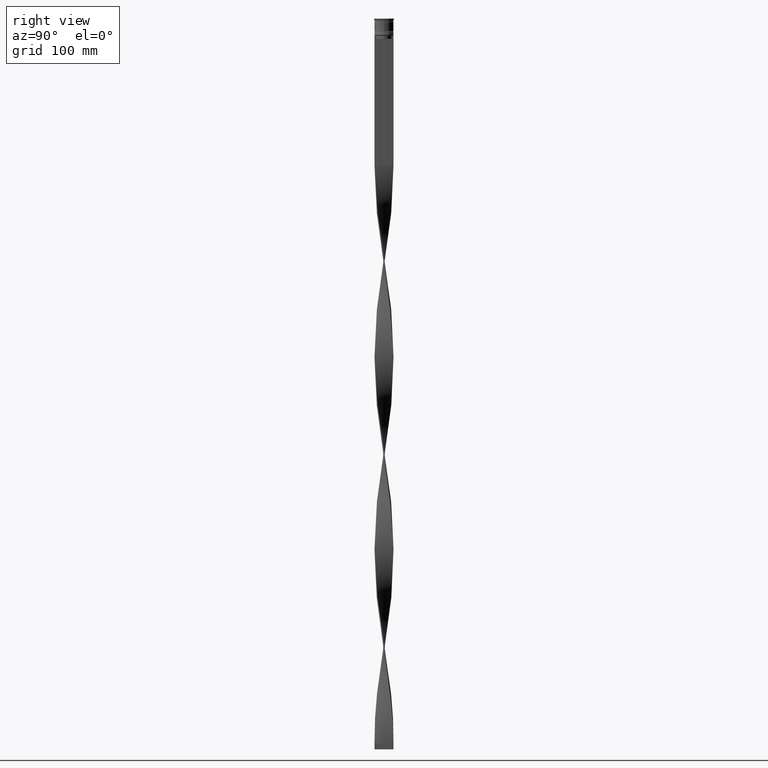
[diagram: clean part render]
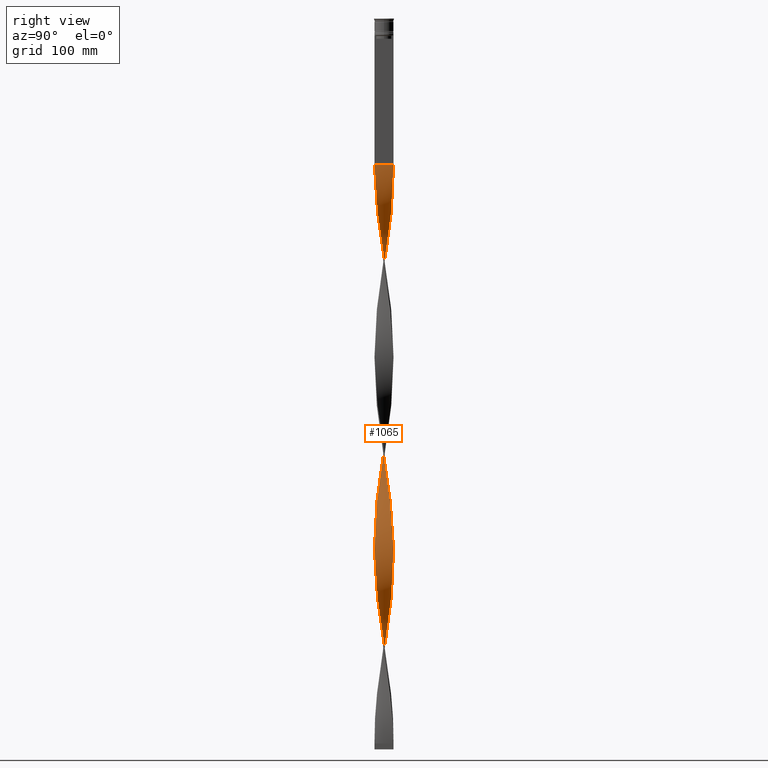
[diagram: same view with one face highlighted and labeled with its STEP entity id]
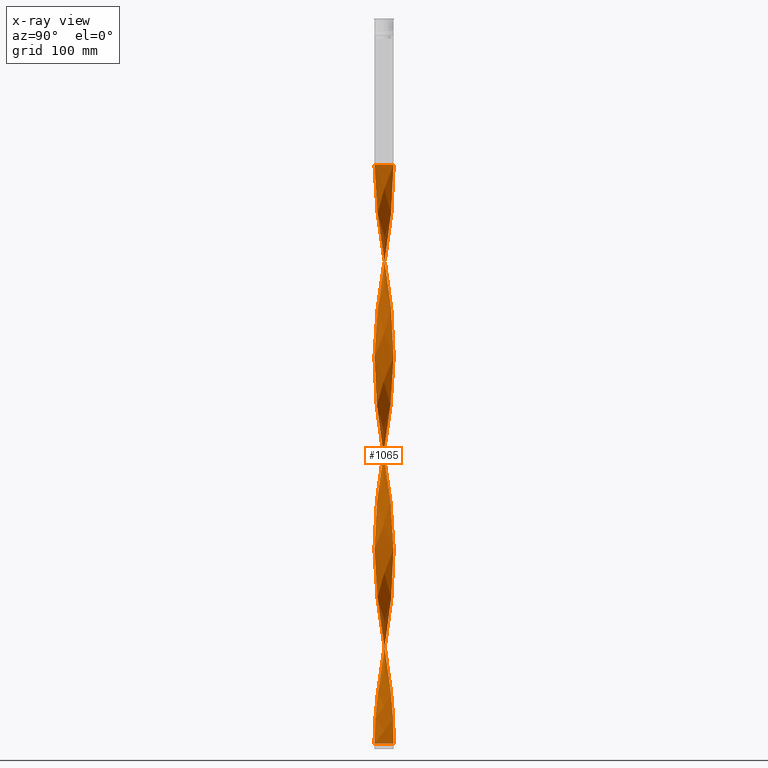
[diagram: x-ray of the same camera — body ghosted, the highlighted face saturated]
A machine part, right view. The second image highlights one B-rep face of the part: STEP entity #1065.
The next image is the same camera in x-ray: the body ghosted, the highlighted face saturated — about 0% of this face is hidden behind the body in this view.
In plain terms, the highlighted face is a freeform B-spline surface patch.
Its self-contained STEP definition (entity closure, byte-faithful):
#10 = CARTESIAN_POINT ( 'NONE',  ( 7.952818567661520177, 1.001337520448643437, -207.2400000000000091 ) ) ;
#19 = CARTESIAN_POINT ( 'NONE',  ( 8.015400789812524351, -0.5076101705763140792, -521.5200000000002092 ) ) ;
#21 = CARTESIAN_POINT ( 'NONE',  ( 1.498723219171669063, 7.874250993733667769, -440.5200000000000387 ) ) ;
#28 = CARTESIAN_POINT ( 'NONE',  ( -7.639394946319396418, 2.478701829738566342, -191.0400000000000205 ) ) ;
#30 = CARTESIAN_POINT ( 'NONE',  ( 8.015817384569142945, 0.5009885865355726553, -204.0000000000000284 ) ) ;
#48 = CARTESIAN_POINT ( 'NONE',  ( 5.845393947331968043, -5.484648539377409371, -330.3600000000000136 ) ) ;
#51 = CARTESIAN_POINT ( 'NONE',  ( 3.866277073390941510, -7.039617851728269926, -145.6800000000000352 ) ) ;
#65 = EDGE_CURVE ( 'NONE', #3573, #2359, #328, .T. ) ;
#73 = CARTESIAN_POINT ( 'NONE',  ( 7.637344718665179499, 2.485011781637414430, -385.4399999999999977 ) ) ;
#76 = CARTESIAN_POINT ( 'NONE',  ( -3.872091084340838041, -7.036421572160664439, -417.8400000000000887 ) ) ;
#88 = CARTESIAN_POINT ( 'NONE',  ( -7.453943633173751415, 2.947664213147155543, -511.8000000000000114 ) ) ;
#97 = CARTESIAN_POINT ( 'NONE',  ( 8.015817384569142945, 0.5009885865355726553, -528.0000000000000000 ) ) ;
#107 = CARTESIAN_POINT ( 'NONE',  ( -4.718088392280368026, -6.499535354871833093, -579.8400000000001455 ) ) ;
#117 = CARTESIAN_POINT ( 'NONE',  ( -0.003317338029197266971, -8.031457333626830675, -443.7600000000000477 ) ) ;
#118 = ORIENTED_EDGE ( 'NONE', *, *, #3540, .F. ) ;
#131 = CARTESIAN_POINT ( 'NONE',  ( 6.486710006526624106, 4.708778322582984899, -233.1599999999999966 ) ) ;
#137 = CARTESIAN_POINT ( 'NONE',  ( 7.764607348536644693, -1.990194142050141002, -356.2800000000000296 ) ) ;
#155 = CARTESIAN_POINT ( 'NONE',  ( 6.190458785190118718, 5.116887524214525307, -236.4000000000000341 ) ) ;
#172 = CARTESIAN_POINT ( 'NONE',  ( 8.015817384569144721, 0.5009885865355727663, -204.0000000000000284 ) ) ;
#175 = CARTESIAN_POINT ( 'NONE',  ( -1.994129100314147029, -7.779959321094163549, -275.2799999999999727 ) ) ;
#198 = CARTESIAN_POINT ( 'NONE',  ( 0.5000000000000001110, -8.000000000000003553, -123.0000000000000000 ) ) ;
#203 = CARTESIAN_POINT ( 'NONE',  ( -1.505227516754521488, 7.873010232611473036, -135.9600000000000080 ) ) ;
#204 = CARTESIAN_POINT ( 'NONE',  ( -7.268492320028112630, -3.416626596555748296, -385.4399999999999977 ) ) ;
#219 = CARTESIAN_POINT ( 'NONE',  ( 3.866277073390941066, -7.039617851728269038, -145.6800000000000352 ) ) ;
#221 = CARTESIAN_POINT ( 'NONE',  ( 0.5066085178571947401, -7.999584227297972916, -291.4800000000000182 ) ) ;
#222 = CARTESIAN_POINT ( 'NONE',  ( 6.779406190655039133, -4.306270963224203108, -495.6000000000000227 ) ) ;
#236 = CARTESIAN_POINT ( 'NONE',  ( -6.186229683506279997, -5.121999629979042012, -566.8799999999999955 ) ) ;
#237 = CARTESIAN_POINT ( 'NONE',  ( -7.764607348536649134, -1.990194142050145665, -375.7199999999999704 ) ) ;
#239 = CARTESIAN_POINT ( 'NONE',  ( -3.866277073390936625, -7.039617851728263709, -262.3199999999999932 ) ) ;
#260 = CARTESIAN_POINT ( 'NONE',  ( -5.106790515527262819, 6.178243328853343819, -317.4000000000000341 ) ) ;
#264 = CARTESIAN_POINT ( 'NONE',  ( 6.782961227863132159, 4.300669120951441826, -553.9200000000000728 ) ) ;
#286 = CARTESIAN_POINT ( 'NONE',  ( -1.003317338029196204, -7.968542666373173766, -605.7600000000001046 ) ) ;
#287 = CARTESIAN_POINT ( 'NONE',  ( 1.994129100314148584, -7.779959321094168878, -456.7200000000000841 ) ) ;
#289 = CARTESIAN_POINT ( 'NONE',  ( 8.015817384569135839, -0.5009885865355728773, -366.0000000000000000 ) ) ;
#290 = CARTESIAN_POINT ( 'NONE',  ( 7.639394946319403523, 2.478701829738569451, -540.9600000000001501 ) ) ;
#297 = CARTESIAN_POINT ( 'NONE',  ( 8.015400789812524351, -0.5076101705763141902, -197.5200000000000387 ) ) ;
#304 = CARTESIAN_POINT ( 'NONE',  ( -1.994129100314147029, -7.779959321094163549, -599.2800000000000864 ) ) ;
#308 = CARTESIAN_POINT ( 'NONE',  ( -5.111892533718802589, -6.174022572335641890, -408.1200000000000614 ) ) ;
#310 = CARTESIAN_POINT ( 'NONE',  ( -0.5066085178571945180, 7.999584227297972916, -453.4800000000000750 ) ) ;
#317 = CARTESIAN_POINT ( 'NONE',  ( -7.025726773945617509, 3.858647858753589510, -181.3200000000000216 ) ) ;
#319 = CARTESIAN_POINT ( 'NONE',  ( 0.5066085178571940739, 7.999584227297980021, -278.5199999999999818 ) ) ;
#328 = B_SPLINE_CURVE_WITH_KNOTS ( 'NONE', 3,
 ( #3825, #3476, #1396, #388 ),
 .UNSPECIFIED., .F., .F.,
 ( 4, 4 ),
 ( 0.000000000000000000, 1.000000000000000000 ),
 .UNSPECIFIED. ) ;
#329 = CARTESIAN_POINT ( 'NONE',  ( 2.953492255452160542, -7.468681369799081260, -463.2000000000000455 ) ) ;
#331 = CARTESIAN_POINT ( 'NONE',  ( 2.959661021242741441, -7.466238982642869892, -307.6800000000000637 ) ) ;
#342 = CARTESIAN_POINT ( 'NONE',  ( -7.952818567661513960, 1.001337520448642326, -200.7599999999999909 ) ) ;
#346 = CARTESIAN_POINT ( 'NONE',  ( 2.000555335823852587, 7.778309344253832691, -268.8000000000000682 ) ) ;
#356 = CARTESIAN_POINT ( 'NONE',  ( 6.482817937080661785, -4.714135296601624781, -492.3600000000000136 ) ) ;
#358 = CARTESIAN_POINT ( 'NONE',  ( 6.482817937080655568, 4.714135296601623004, -401.6399999999999864 ) ) ;
#361 = CARTESIAN_POINT ( 'NONE',  ( -1.505227516754521488, 7.873010232611473036, -459.9600000000000364 ) ) ;
#371 = CARTESIAN_POINT ( 'NONE',  ( 0.003317338029196290755, 8.031457333626830675, -281.7599999999999909 ) ) ;
#381 = CARTESIAN_POINT ( 'NONE',  ( 8.015609087190826543, 0.003310792020373622829, -369.2400000000000091 ) ) ;
#384 = CARTESIAN_POINT ( 'NONE',  ( -2.480108178533296570, 7.622274163448347295, -466.4399999999999977 ) ) ;
#388 = CARTESIAN_POINT ( 'NONE',  ( -0.5000000000000027756, 8.000000000000003553, -609.0000000000000000 ) ) ;
#392 = CARTESIAN_POINT ( 'NONE',  ( 6.782961227863132159, 4.300669120951441826, -229.9200000000000443 ) ) ;
#403 = CARTESIAN_POINT ( 'NONE',  ( -1.009899697685191056, 7.967711120969122263, -456.7200000000000841 ) ) ;
#409 = CARTESIAN_POINT ( 'NONE',  ( 7.268492320028109077, -3.416626596555742523, -346.5599999999999454 ) ) ;
#413 = CARTESIAN_POINT ( 'NONE',  ( -8.015817384569142945, -0.5009885865355698797, -366.0000000000000000 ) ) ;
#429 = CARTESIAN_POINT ( 'NONE',  ( -2.000555335823852143, 7.778309344253825586, -463.2000000000000455 ) ) ;
#435 = CARTESIAN_POINT ( 'NONE',  ( 6.779406190655031139, 4.306270963224203996, -398.4000000000000909 ) ) ;
#439 = CARTESIAN_POINT ( 'NONE',  ( -7.265667412356206611, 3.422629830937731210, -340.0800000000000978 ) ) ;
#450 = CARTESIAN_POINT ( 'NONE',  ( -6.482817937080656456, -4.714135296601621228, -563.6399999999999864 ) ) ;
#456 = CARTESIAN_POINT ( 'NONE',  ( 7.888576536432219122, 1.508203612066592036, -378.9600000000000932 ) ) ;
#460 = CARTESIAN_POINT ( 'NONE',  ( -7.025726773945623727, -3.858647858753592175, -388.6800000000000068 ) ) ;
#473 = CARTESIAN_POINT ( 'NONE',  ( 7.952818567661520177, 1.001337520448643437, -207.2400000000000091 ) ) ;
#478 = CARTESIAN_POINT ( 'NONE',  ( -0.4999999999999975020, -7.999999999999996447, -285.0000000000000568 ) ) ;
#484 = CARTESIAN_POINT ( 'NONE',  ( 0.5066085178571940739, 7.999584227297980021, -602.5200000000000955 ) ) ;
#496 = CARTESIAN_POINT ( 'NONE',  ( 7.451506065510696608, -2.953820806287573042, -181.3200000000000216 ) ) ;
#514 = CARTESIAN_POINT ( 'NONE',  ( -0.4999999999999975020, -7.999999999999996447, -609.0000000000000000 ) ) ;
#516 = CARTESIAN_POINT ( 'NONE',  ( -6.482817937080656456, -4.714135296601621228, -239.6400000000000148 ) ) ;
#532 = CARTESIAN_POINT ( 'NONE',  ( 1.009899697685191944, 7.967711120969127592, -275.2799999999999727 ) ) ;
#534 = CARTESIAN_POINT ( 'NONE',  ( -2.480108178533296570, 7.622274163448347295, -142.4399999999999977 ) ) ;
#535 = CARTESIAN_POINT ( 'NONE',  ( 3.866277073390941510, -7.039617851728269926, -469.6800000000001205 ) ) ;
#546 = EDGE_CURVE ( 'NONE', #1211, #3573, #3561, .T. ) ;
#553 = CARTESIAN_POINT ( 'NONE',  ( 4.718088392280371579, -6.499535354871838422, -152.1599999999999966 ) ) ;
#555 = CARTESIAN_POINT ( 'NONE',  ( -3.415876052791789075, 7.251330277401763169, -148.9199999999999875 ) ) ;
#556 = CARTESIAN_POINT ( 'NONE',  ( 7.888576536432224451, -1.508203612066592036, -515.0400000000001910 ) ) ;
#572 = CARTESIAN_POINT ( 'NONE',  ( -6.782961227863128606, 4.300669120951436497, -502.0800000000000978 ) ) ;
#574 = CARTESIAN_POINT ( 'NONE',  ( -7.022536801505624204, 3.864450397080964716, -336.8400000000000318 ) ) ;
#576 = CARTESIAN_POINT ( 'NONE',  ( -1.003317338029196204, -7.968542666373173766, -281.7599999999999909 ) ) ;
#588 = ORIENTED_EDGE ( 'NONE', *, *, #65, .F. ) ;
#596 = CARTESIAN_POINT ( 'NONE',  ( -7.951988663122376622, 1.007906891321453058, -356.2800000000000296 ) ) ;
#598 = CARTESIAN_POINT ( 'NONE',  ( -2.000555335823852587, 7.778309344253825586, -139.1999999999999886 ) ) ;
#605 = CARTESIAN_POINT ( 'NONE',  ( -5.500329109473821809, 5.852409554540299652, -165.1200000000000330 ) ) ;
#612 = CARTESIAN_POINT ( 'NONE',  ( -6.782961227863132159, -4.300669120951443603, -391.9200000000000728 ) ) ;
#614 = CARTESIAN_POINT ( 'NONE',  ( 2.480108178533299235, -7.622274163448346407, -304.4400000000000546 ) ) ;
#615 = CARTESIAN_POINT ( 'NONE',  ( 4.723455957963784257, 6.495635590130977022, -573.3600000000001273 ) ) ;
#624 = CARTESIAN_POINT ( 'NONE',  ( 1.994129100314148806, -7.779959321094168878, -132.7199999999999989 ) ) ;
#631 = CARTESIAN_POINT ( 'NONE',  ( -5.495492638774146066, -5.856951302834849216, -573.3600000000001273 ) ) ;
#634 = CARTESIAN_POINT ( 'NONE',  ( -4.718088392280372467, 6.499535354871837534, -314.1599999999999682 ) ) ;
#636 = CARTESIAN_POINT ( 'NONE',  ( 5.495492638774146954, 5.856951302834849216, -411.3600000000000705 ) ) ;
#637 = CARTESIAN_POINT ( 'NONE',  ( 0.5066085178571940739, 7.999584227297980021, -602.5200000000000955 ) ) ;
#643 = CARTESIAN_POINT ( 'NONE',  ( -8.015609087190826543, -0.003310792020371129164, -207.2400000000000091 ) ) ;
#645 = CARTESIAN_POINT ( 'NONE',  ( 2.473810677883154785, -7.624320345446625069, -135.9600000000000080 ) ) ;
#653 = CARTESIAN_POINT ( 'NONE',  ( -2.473810677883153453, -7.624320345446617964, -596.0399999999999636 ) ) ;
#656 = CARTESIAN_POINT ( 'NONE',  ( -2.000555335823849035, -7.778309344253833579, -430.8000000000000682 ) ) ;
#658 = CARTESIAN_POINT ( 'NONE',  ( -3.872091084340837153, 7.036421572160659110, -476.1600000000000250 ) ) ;
#665 = CARTESIAN_POINT ( 'NONE',  ( -6.782961227863128606, 4.300669120951436497, -178.0800000000000125 ) ) ;
#668 = CARTESIAN_POINT ( 'NONE',  ( 4.292182732835656545, -6.769576603300054174, -148.9199999999999875 ) ) ;
#674 = CARTESIAN_POINT ( 'NONE',  ( 6.782961227863133047, 4.300669120951441826, -553.9200000000001864 ) ) ;
#677 = CARTESIAN_POINT ( 'NONE',  ( 1.003317338029197314, 7.968542666373173766, -443.7600000000000477 ) ) ;
#680 = CARTESIAN_POINT ( 'NONE',  ( -7.764607348536644693, 1.990194142050140114, -518.2800000000000864 ) ) ;
#688 = CARTESIAN_POINT ( 'NONE',  ( -7.637344718665181276, -2.485011781637412209, -223.4399999999999977 ) ) ;
#691 = CARTESIAN_POINT ( 'NONE',  ( -2.953492255452163651, 7.468681369799080372, -301.2000000000001023 ) ) ;
#700 = CARTESIAN_POINT ( 'NONE',  ( 2.480108178533297458, 7.622274163448353512, -589.5600000000000591 ) ) ;
#702 = CARTESIAN_POINT ( 'NONE',  ( 7.637344718665179499, 2.485011781637414430, -385.4399999999999977 ) ) ;
#705 = CARTESIAN_POINT ( 'NONE',  ( -7.762960627548698866, -1.996607696852002345, -544.2000000000000455 ) ) ;
#713 = CARTESIAN_POINT ( 'NONE',  ( -1.498723219171671284, -7.874250993733667769, -278.5199999999999818 ) ) ;
#730 = CARTESIAN_POINT ( 'NONE',  ( -6.782961227863128606, 4.300669120951436497, -502.0800000000000409 ) ) ;
#735 = CARTESIAN_POINT ( 'NONE',  ( 7.025726773945620174, -3.858647858753585957, -343.3199999999999932 ) ) ;
#739 = CARTESIAN_POINT ( 'NONE',  ( 7.762960627548705084, -1.996607696852003677, -511.8000000000000114 ) ) ;
#753 = CARTESIAN_POINT ( 'NONE',  ( 7.451506065510690391, 2.953820806287569489, -388.6800000000000068 ) ) ;
#757 = CARTESIAN_POINT ( 'NONE',  ( -5.845393947331969819, -5.484648539377416476, -401.6399999999999864 ) ) ;
#771 = CARTESIAN_POINT ( 'NONE',  ( -7.952818567661513960, 1.001337520448642326, -524.7599999999999909 ) ) ;
#777 = CARTESIAN_POINT ( 'NONE',  ( 6.190458785190111612, -5.116887524214523530, -333.6000000000000227 ) ) ;
#782 = CARTESIAN_POINT ( 'NONE',  ( -6.482817937080662674, 4.714135296601623892, -330.3600000000000136 ) ) ;
#799 = CARTESIAN_POINT ( 'NONE',  ( 1.009899697685192388, -7.967711120969120486, -294.7199999999999136 ) ) ;
#803 = CARTESIAN_POINT ( 'NONE',  ( 0.5000000000000001110, -8.000000000000003553, -447.0000000000000000 ) ) ;
#805 = CARTESIAN_POINT ( 'NONE',  ( 6.486710006526624106, 4.708778322582984899, -557.1600000000000819 ) ) ;
#816 = CARTESIAN_POINT ( 'NONE',  ( 5.845393947331972484, 5.484648539377414700, -239.6400000000000148 ) ) ;
#819 = CARTESIAN_POINT ( 'NONE',  ( 5.106790515527253049, 6.178243328853343819, -414.6000000000000227 ) ) ;
#825 = CARTESIAN_POINT ( 'NONE',  ( 6.779406190655039133, -4.306270963224203108, -495.6000000000000227 ) ) ;
#838 = CARTESIAN_POINT ( 'NONE',  ( -4.292182732835652104, -6.769576603300047957, -259.0799999999999841 ) ) ;
#856 = CARTESIAN_POINT ( 'NONE',  ( 0.5066085178571940739, 7.999584227297980021, -278.5199999999999818 ) ) ;
#858 = CARTESIAN_POINT ( 'NONE',  ( -7.888576536432219122, -1.508203612066591370, -216.9600000000000080 ) ) ;
#877 = CARTESIAN_POINT ( 'NONE',  ( 6.186229683506285326, -5.121999629979046453, -165.1200000000000330 ) ) ;
#879 = CARTESIAN_POINT ( 'NONE',  ( -6.782961227863128606, 4.300669120951436497, -178.0800000000000125 ) ) ;
#880 = CARTESIAN_POINT ( 'NONE',  ( -3.415876052791792628, -7.251330277401769386, -421.0799999999999841 ) ) ;
#889 = CARTESIAN_POINT ( 'NONE',  ( 0.5000000000000001110, 7.999999999999996447, -123.0000000000000000 ) ) ;
#901 = CARTESIAN_POINT ( 'NONE',  ( -2.953492255452156989, -7.468681369799075931, -592.8000000000000682 ) ) ;
#903 = CARTESIAN_POINT ( 'NONE',  ( -1.505227516754521266, -7.873010232611480141, -434.0400000000000205 ) ) ;
#906 = CARTESIAN_POINT ( 'NONE',  ( 7.764607348536650022, 1.990194142050143666, -537.7200000000000273 ) ) ;
#930 = CARTESIAN_POINT ( 'NONE',  ( 0.5000000000000001110, -8.000000000000003553, -447.0000000000000000 ) ) ;
#932 = CARTESIAN_POINT ( 'NONE',  ( -8.015817384569135839, 0.5009885865355701018, -204.0000000000000284 ) ) ;
#947 = CARTESIAN_POINT ( 'NONE',  ( -7.451506065510697496, 2.953820806287569045, -343.3199999999999932 ) ) ;
#949 = CARTESIAN_POINT ( 'NONE',  ( 5.845393947331968043, -5.484648539377409371, -330.3600000000000136 ) ) ;
#960 = CARTESIAN_POINT ( 'NONE',  ( -1.003317338029198424, 7.968542666373180872, -288.2400000000001228 ) ) ;
#968 = CARTESIAN_POINT ( 'NONE',  ( 1.994129100314147918, 7.779959321094163549, -437.2800000000000296 ) ) ;
#969 = CARTESIAN_POINT ( 'NONE',  ( 3.872091084340840705, 7.036421572160664439, -579.8400000000001455 ) ) ;
#981 = CARTESIAN_POINT ( 'NONE',  ( 6.190458785190118718, 5.116887524214525307, -236.4000000000000341 ) ) ;
#989 = CARTESIAN_POINT ( 'NONE',  ( -0.4999999999999975020, -7.999999999999996447, -609.0000000000000000 ) ) ;
#991 = CARTESIAN_POINT ( 'NONE',  ( -7.762960627548705084, 1.996607696852004565, -349.8000000000000114 ) ) ;
#993 = CARTESIAN_POINT ( 'NONE',  ( 6.486710006526620553, -4.708778322582976905, -336.8400000000000318 ) ) ;
#1002 = CARTESIAN_POINT ( 'NONE',  ( -6.482817937080656456, -4.714135296601621228, -239.6400000000000148 ) ) ;
#1004 = CARTESIAN_POINT ( 'NONE',  ( 5.111892533718805254, 6.174022572335640113, -246.1200000000000045 ) ) ;
#1014 = CARTESIAN_POINT ( 'NONE',  ( 4.723455957963784257, -6.495635590130969028, -320.6400000000001000 ) ) ;
#1023 = CARTESIAN_POINT ( 'NONE',  ( -2.480108178533296570, 7.622274163448347295, -142.4399999999999977 ) ) ;
#1026 = CARTESIAN_POINT ( 'NONE',  ( 7.453943633173757632, 2.947664213147158208, -220.2000000000000171 ) ) ;
#1036 = CARTESIAN_POINT ( 'NONE',  ( 5.500329109473826250, 5.852409554540305869, -566.8799999999999955 ) ) ;
#1038 = CARTESIAN_POINT ( 'NONE',  ( 4.297773521152310927, -6.766028581145812737, -317.4000000000000341 ) ) ;
#1041 = CARTESIAN_POINT ( 'NONE',  ( 2.953492255452154325, 7.468681369799076819, -430.8000000000000682 ) ) ;
#1048 = CARTESIAN_POINT ( 'NONE',  ( 4.723455957963784257, 6.495635590130977022, -249.3599999999999852 ) ) ;
#1064 = CARTESIAN_POINT ( 'NONE',  ( -7.637344718665181276, -2.485011781637412209, -547.4400000000001683 ) ) ;
#1065 = ADVANCED_FACE ( 'NONE', ( #3776 ), #3057, .T. ) ;
#1072 = CARTESIAN_POINT ( 'NONE',  ( -2.000555335823849035, -7.778309344253833579, -430.8000000000000682 ) ) ;
#1092 = CARTESIAN_POINT ( 'NONE',  ( 5.106790515527261043, -6.178243328853345595, -479.4000000000000341 ) ) ;
#1101 = CARTESIAN_POINT ( 'NONE',  ( -7.268492320028109077, 3.416626596555742523, -508.5600000000001160 ) ) ;
#1106 = CARTESIAN_POINT ( 'NONE',  ( 7.639394946319397306, -2.478701829738564566, -353.0400000000000205 ) ) ;
#1110 = CARTESIAN_POINT ( 'NONE',  ( -7.451506065510697496, 2.953820806287569045, -343.3199999999999932 ) ) ;
#1116 = CARTESIAN_POINT ( 'NONE',  ( 1.009899697685191944, 7.967711120969127592, -599.2799999999999727 ) ) ;
#1126 = CARTESIAN_POINT ( 'NONE',  ( 0.003317338029196290321, 8.031457333626828898, -281.7600000000000477 ) ) ;
#1133 = CARTESIAN_POINT ( 'NONE',  ( -6.190458785190114277, -5.116887524214530636, -398.4000000000000909 ) ) ;
#1136 = CARTESIAN_POINT ( 'NONE',  ( 7.762960627548705084, -1.996607696852003677, -511.8000000000000114 ) ) ;
#1146 = CARTESIAN_POINT ( 'NONE',  ( 7.265667412356207500, -3.422629830937730322, -178.0800000000000125 ) ) ;
#1150 = CARTESIAN_POINT ( 'NONE',  ( 6.186229683506279997, 5.121999629979041124, -404.8799999999999955 ) ) ;
#1167 = CARTESIAN_POINT ( 'NONE',  ( 7.637344718665186605, -2.485011781637413986, -184.5600000000000307 ) ) ;
#1189 = CARTESIAN_POINT ( 'NONE',  ( 6.482817937080661785, -4.714135296601624781, -168.3600000000000136 ) ) ;
#1194 = CARTESIAN_POINT ( 'NONE',  ( -8.015609087190826543, -0.003310792020371129164, -207.2400000000000091 ) ) ;
#1211 = VERTEX_POINT ( 'NONE', #889 ) ;
#1213 = CARTESIAN_POINT ( 'NONE',  ( 8.015609087190831872, -0.003310792020370695483, -200.7599999999999909 ) ) ;
#1216 = CARTESIAN_POINT ( 'NONE',  ( -7.764607348536644693, 1.990194142050140114, -194.2800000000000011 ) ) ;
#1217 = CARTESIAN_POINT ( 'NONE',  ( -8.015400789812524351, 0.5076101705763098604, -359.5200000000000387 ) ) ;
#1233 = CARTESIAN_POINT ( 'NONE',  ( -5.845393947331969819, -5.484648539377416476, -401.6399999999999864 ) ) ;
#1235 = CARTESIAN_POINT ( 'NONE',  ( -0.4999999999999975020, -7.999999999999996447, -285.0000000000000568 ) ) ;
#1257 = CARTESIAN_POINT ( 'NONE',  ( -0.5066085178571916314, -7.999584227297980021, -440.5200000000000387 ) ) ;
#1278 = CARTESIAN_POINT ( 'NONE',  ( -4.292182732835652104, -6.769576603300047957, -583.0800000000000409 ) ) ;
#1282 = CARTESIAN_POINT ( 'NONE',  ( -2.000555335823852587, 7.778309344253825586, -463.2000000000000455 ) ) ;
#1289 = CARTESIAN_POINT ( 'NONE',  ( -3.415876052791789075, 7.251330277401763169, -148.9199999999999875 ) ) ;
#1299 = CARTESIAN_POINT ( 'NONE',  ( 3.415876052791789519, -7.251330277401763169, -310.9199999999999591 ) ) ;
#1300 = CARTESIAN_POINT ( 'NONE',  ( 5.111892533718805254, 6.174022572335640113, -570.1200000000000045 ) ) ;
#1308 = CARTESIAN_POINT ( 'NONE',  ( -7.764607348536644693, 1.990194142050140114, -194.2800000000000011 ) ) ;
#1310 = CARTESIAN_POINT ( 'NONE',  ( 5.106790515527261043, -6.178243328853345595, -155.4000000000000057 ) ) ;
#1315 = CARTESIAN_POINT ( 'NONE',  ( -1.498723219171671284, -7.874250993733667769, -602.5200000000000955 ) ) ;
#1317 = CARTESIAN_POINT ( 'NONE',  ( -3.872091084340838041, -7.036421572160664439, -417.8400000000001455 ) ) ;
#1320 = CARTESIAN_POINT ( 'NONE',  ( -2.480108178533296570, 7.622274163448347295, -466.4399999999999977 ) ) ;
#1321 = CARTESIAN_POINT ( 'NONE',  ( 7.025726773945621950, 3.858647858753593063, -550.6800000000000637 ) ) ;
#1334 = CARTESIAN_POINT ( 'NONE',  ( 8.015609087190831872, -0.003310792020370695483, -200.7599999999999909 ) ) ;
#1343 = CARTESIAN_POINT ( 'NONE',  ( 4.718088392280371579, -6.499535354871838422, -476.1600000000000250 ) ) ;
#1345 = CARTESIAN_POINT ( 'NONE',  ( 7.764607348536644693, -1.990194142050141002, -356.2800000000000296 ) ) ;
#1358 = CARTESIAN_POINT ( 'NONE',  ( -1.498723219171673948, 7.874250993733674875, -291.4800000000000182 ) ) ;
#1368 = CARTESIAN_POINT ( 'NONE',  ( 5.840861161140218805, -5.489475466406950943, -485.8800000000000523 ) ) ;
#1370 = CARTESIAN_POINT ( 'NONE',  ( -5.845393947331967155, 5.484648539377410259, -492.3600000000000136 ) ) ;
#1377 = CARTESIAN_POINT ( 'NONE',  ( -7.022536801505615323, -3.864450397080966049, -233.1599999999999966 ) ) ;
#1381 = CARTESIAN_POINT ( 'NONE',  ( -4.292182732835657433, 6.769576603300054174, -310.9199999999999591 ) ) ;
#1393 = CARTESIAN_POINT ( 'NONE',  ( -5.500329109473821809, 5.852409554540299652, -489.1200000000001182 ) ) ;
#1396 = CARTESIAN_POINT ( 'NONE',  ( -0.5000000000000009992, 2.666666666666670515, -609.0000000000000000 ) ) ;
#1398 = CARTESIAN_POINT ( 'NONE',  ( 8.015609087190826543, 0.003310792020373622829, -369.2400000000000091 ) ) ;
#1401 = CARTESIAN_POINT ( 'NONE',  ( 6.186229683506286214, -5.121999629979046453, -165.1200000000000045 ) ) ;
#1415 = CARTESIAN_POINT ( 'NONE',  ( 0.5000000000000001110, 7.999999999999996447, -447.0000000000000000 ) ) ;
#1421 = CARTESIAN_POINT ( 'NONE',  ( 0.5066085178571947401, -7.999584227297972916, -291.4800000000000182 ) ) ;
#1425 = CARTESIAN_POINT ( 'NONE',  ( 3.409884664421551026, -7.254149610763674261, -466.4399999999999977 ) ) ;
#1436 = CARTESIAN_POINT ( 'NONE',  ( -7.639394946319396418, 2.478701829738566342, -515.0400000000001910 ) ) ;
#1446 = CARTESIAN_POINT ( 'NONE',  ( -7.639394946319403523, -2.478701829738570339, -378.9600000000000932 ) ) ;
#1448 = CARTESIAN_POINT ( 'NONE',  ( 7.022536801505622428, -3.864450397080966937, -498.8400000000000318 ) ) ;
#1463 = CARTESIAN_POINT ( 'NONE',  ( -5.106790515527258378, -6.178243328853339378, -252.6000000000000512 ) ) ;
#1470 = CARTESIAN_POINT ( 'NONE',  ( 1.003317338029198647, -7.968542666373180872, -450.2400000000000659 ) ) ;
#1473 = CARTESIAN_POINT ( 'NONE',  ( 2.000555335823852143, 7.778309344253832691, -592.8000000000001819 ) ) ;
#1485 = CARTESIAN_POINT ( 'NONE',  ( 3.409884664421551026, -7.254149610763674261, -142.4399999999999977 ) ) ;
#1490 = CARTESIAN_POINT ( 'NONE',  ( 7.889819750753890304, -1.501686454361710332, -359.5200000000000955 ) ) ;
#1497 = VECTOR ( 'NONE', #3688, 1000.000000000000000 ) ;
#1509 = CARTESIAN_POINT ( 'NONE',  ( 7.453943633173757632, 2.947664213147158208, -220.2000000000000171 ) ) ;
#1527 = CARTESIAN_POINT ( 'NONE',  ( 7.025726773945621950, 3.858647858753593063, -226.6800000000000068 ) ) ;
#1532 = ORIENTED_EDGE ( 'NONE', *, *, #546, .F. ) ;
#1553 = CARTESIAN_POINT ( 'NONE',  ( 2.953492255452160542, -7.468681369799081260, -139.1999999999999602 ) ) ;
#1556 = CARTESIAN_POINT ( 'NONE',  ( -2.959661021242741885, 7.466238982642869892, -145.6800000000000352 ) ) ;
#1557 = CARTESIAN_POINT ( 'NONE',  ( 4.292182732835656545, -6.769576603300054174, -472.9200000000000159 ) ) ;
#1573 = CARTESIAN_POINT ( 'NONE',  ( -7.637344718665186605, 2.485011781637413097, -346.5599999999999454 ) ) ;
#1575 = CARTESIAN_POINT ( 'NONE',  ( -5.106790515527258378, -6.178243328853339378, -252.6000000000000512 ) ) ;
#1579 = CARTESIAN_POINT ( 'NONE',  ( 0.5000000000000001110, -8.000000000000003553, -123.0000000000000000 ) ) ;
#1590 = EDGE_LOOP ( 'NONE', ( #118, #4223, #588, #1532 ) ) ;
#1594 = CARTESIAN_POINT ( 'NONE',  ( -7.025726773945623727, -3.858647858753592175, -388.6800000000000068 ) ) ;
#1596 = CARTESIAN_POINT ( 'NONE',  ( -7.022536801505615323, -3.864450397080966049, -233.1599999999999966 ) ) ;
#1615 = CARTESIAN_POINT ( 'NONE',  ( -7.639394946319403523, -2.478701829738569895, -378.9600000000000932 ) ) ;
#1617 = CARTESIAN_POINT ( 'NONE',  ( -3.872091084340837153, 7.036421572160659110, -152.1599999999999966 ) ) ;
#1618 = CARTESIAN_POINT ( 'NONE',  ( 7.952818567661520177, 1.001337520448643437, -531.2400000000000091 ) ) ;
#1640 = CARTESIAN_POINT ( 'NONE',  ( -8.015609087190826543, -0.003310792020371129164, -531.2400000000000091 ) ) ;
#1642 = CARTESIAN_POINT ( 'NONE',  ( 2.473810677883154785, -7.624320345446625069, -459.9600000000000364 ) ) ;
#1644 = CARTESIAN_POINT ( 'NONE',  ( 7.025726773945620174, -3.858647858753585957, -343.3199999999999932 ) ) ;
#1645 = CARTESIAN_POINT ( 'NONE',  ( 1.505227516754523709, 7.873010232611480141, -596.0399999999999636 ) ) ;
#1651 = CARTESIAN_POINT ( 'NONE',  ( -0.5066085178571945180, 7.999584227297972916, -129.4800000000000182 ) ) ;
#1652 = CARTESIAN_POINT ( 'NONE',  ( 7.268492320028114406, 3.416626596555746076, -223.4399999999999977 ) ) ;
#1658 = CARTESIAN_POINT ( 'NONE',  ( -7.762960627548698866, -1.996607696852002345, -544.2000000000000455 ) ) ;
#1664 = CARTESIAN_POINT ( 'NONE',  ( 3.415876052791791739, 7.251330277401769386, -583.0800000000000409 ) ) ;
#1671 = CARTESIAN_POINT ( 'NONE',  ( -0.5000000000000027756, 8.000000000000003553, -285.0000000000000568 ) ) ;
#1681 = CARTESIAN_POINT ( 'NONE',  ( 4.723455957963784257, 6.495635590130977022, -573.3600000000000136 ) ) ;
#1684 = CARTESIAN_POINT ( 'NONE',  ( -4.297773521152309151, 6.766028581145814513, -479.4000000000000341 ) ) ;
#1695 = CARTESIAN_POINT ( 'NONE',  ( -2.959661021242742329, 7.466238982642869004, -145.6800000000000352 ) ) ;
#1698 = CARTESIAN_POINT ( 'NONE',  ( 0.5000000000000001110, -8.000000000000003553, -123.0000000000000000 ) ) ;
#1708 = CARTESIAN_POINT ( 'NONE',  ( 7.451506065510696608, -2.953820806287573042, -505.3199999999999932 ) ) ;
#1710 = CARTESIAN_POINT ( 'NONE',  ( -1.505227516754521488, 7.873010232611473036, -459.9600000000000364 ) ) ;
#1713 = CARTESIAN_POINT ( 'NONE',  ( -6.779406190655033804, -4.306270963224198667, -560.3999999999999773 ) ) ;
#1720 = CARTESIAN_POINT ( 'NONE',  ( -1.505227516754521488, 7.873010232611473036, -135.9600000000000080 ) ) ;
#1724 = CARTESIAN_POINT ( 'NONE',  ( -3.409884664421553691, 7.254149610763673373, -304.4400000000000546 ) ) ;
#1734 = CARTESIAN_POINT ( 'NONE',  ( 3.872091084340840705, 7.036421572160664439, -579.8400000000001455 ) ) ;
#1736 = CARTESIAN_POINT ( 'NONE',  ( 6.186229683506280885, 5.121999629979041124, -404.8799999999999955 ) ) ;
#1739 = CARTESIAN_POINT ( 'NONE',  ( 2.473810677883150788, 7.624320345446618852, -434.0400000000000205 ) ) ;
#1744 = CARTESIAN_POINT ( 'NONE',  ( 2.000555335823854808, -7.778309344253825586, -301.2000000000000455 ) ) ;
#1746 = CARTESIAN_POINT ( 'NONE',  ( 1.498723219171673504, -7.874250993733674875, -129.4800000000000182 ) ) ;
#1759 = CARTESIAN_POINT ( 'NONE',  ( -5.840861161140211699, -5.489475466406946502, -570.1200000000000045 ) ) ;
#1765 = CARTESIAN_POINT ( 'NONE',  ( 7.952818567661513960, -1.001337520448641438, -362.7600000000000477 ) ) ;
#1768 = CARTESIAN_POINT ( 'NONE',  ( -6.186229683506286214, 5.121999629979046453, -327.1200000000000614 ) ) ;
#1784 = CARTESIAN_POINT ( 'NONE',  ( -8.015817384569137616, 0.5009885865355701018, -528.0000000000000000 ) ) ;
#1793 = CARTESIAN_POINT ( 'NONE',  ( 8.015609087190831872, -0.003310792020370695483, -524.7599999999999909 ) ) ;
#1802 = CARTESIAN_POINT ( 'NONE',  ( -6.186229683506279109, -5.121999629979042012, -566.8799999999999955 ) ) ;
#1809 = CARTESIAN_POINT ( 'NONE',  ( 5.500329109473821809, -5.852409554540299652, -327.1200000000001182 ) ) ;
#1814 = CARTESIAN_POINT ( 'NONE',  ( -7.762960627548705084, 1.996607696852004565, -349.8000000000000114 ) ) ;
#1816 = CARTESIAN_POINT ( 'NONE',  ( 4.292182732835656545, -6.769576603300054174, -472.9200000000000159 ) ) ;
#1825 = CARTESIAN_POINT ( 'NONE',  ( 1.498723219171673504, -7.874250993733674875, -129.4800000000000182 ) ) ;
#1830 = CARTESIAN_POINT ( 'NONE',  ( 6.486710006526620553, -4.708778322582976905, -336.8400000000000318 ) ) ;
#1849 = CARTESIAN_POINT ( 'NONE',  ( -1.498723219171673948, 7.874250993733674875, -291.4800000000000182 ) ) ;
#1869 = CARTESIAN_POINT ( 'NONE',  ( 7.888576536432224451, -1.508203612066592036, -191.0400000000000205 ) ) ;
#1872 = CARTESIAN_POINT ( 'NONE',  ( -1.009899697685191278, 7.967711120969122263, -132.7199999999999989 ) ) ;
#1888 = CARTESIAN_POINT ( 'NONE',  ( 6.779406190655039133, -4.306270963224203108, -171.6000000000000512 ) ) ;
#1890 = CARTESIAN_POINT ( 'NONE',  ( -6.486710006526619665, 4.708778322582978682, -174.8400000000000034 ) ) ;
#1891 = CARTESIAN_POINT ( 'NONE',  ( 2.953492255452160986, -7.468681369799080372, -463.2000000000000455 ) ) ;
#1908 = CARTESIAN_POINT ( 'NONE',  ( 2.473810677883154785, -7.624320345446625069, -135.9600000000000080 ) ) ;
#1913 = CARTESIAN_POINT ( 'NONE',  ( -6.186229683506279997, -5.121999629979042012, -242.8800000000000523 ) ) ;
#1914 = CARTESIAN_POINT ( 'NONE',  ( 7.951988663122376622, -1.007906891321452170, -518.2800000000000864 ) ) ;
#1931 = CARTESIAN_POINT ( 'NONE',  ( -2.473810677883156561, 7.624320345446625069, -297.9599999999999795 ) ) ;
#1934 = CARTESIAN_POINT ( 'NONE',  ( -6.190458785190113389, 5.116887524214520866, -171.6000000000000227 ) ) ;
#1953 = CARTESIAN_POINT ( 'NONE',  ( -1.994129100314149472, 7.779959321094168878, -294.7199999999999136 ) ) ;
#1955 = CARTESIAN_POINT ( 'NONE',  ( -7.762960627548698866, -1.996607696852002345, -220.2000000000000171 ) ) ;
#1972 = CARTESIAN_POINT ( 'NONE',  ( -3.409884664421546585, -7.254149610763668932, -589.5600000000000591 ) ) ;
#1976 = CARTESIAN_POINT ( 'NONE',  ( 3.872091084340838041, -7.036421572160658222, -314.1599999999999682 ) ) ;
#1977 = CARTESIAN_POINT ( 'NONE',  ( 1.009899697685191944, 7.967711120969127592, -599.2800000000000864 ) ) ;
#1987 = CARTESIAN_POINT ( 'NONE',  ( 7.637344718665187493, -2.485011781637413986, -184.5600000000000307 ) ) ;
#1996 = CARTESIAN_POINT ( 'NONE',  ( -7.025726773945617509, 3.858647858753589510, -505.3199999999999932 ) ) ;
#2000 = CARTESIAN_POINT ( 'NONE',  ( -7.268492320028113518, -3.416626596555748296, -385.4399999999999977 ) ) ;
#2002 = CARTESIAN_POINT ( 'NONE',  ( 3.409884664421547473, 7.254149610763668932, -427.5600000000000023 ) ) ;
#2009 = CARTESIAN_POINT ( 'NONE',  ( -5.845393947331967155, 5.484648539377410259, -168.3600000000000136 ) ) ;
#2011 = CARTESIAN_POINT ( 'NONE',  ( 4.297773521152314480, 6.766028581145818066, -252.6000000000000512 ) ) ;
#2021 = CARTESIAN_POINT ( 'NONE',  ( -5.495492638774152283, 5.856951302834851880, -320.6400000000001000 ) ) ;
#2023 = CARTESIAN_POINT ( 'NONE',  ( 5.111892533718801701, -6.174022572335633896, -323.8799999999999955 ) ) ;
#2035 = CARTESIAN_POINT ( 'NONE',  ( 7.764607348536650022, 1.990194142050143666, -213.7200000000000273 ) ) ;
#2046 = CARTESIAN_POINT ( 'NONE',  ( 7.762960627548699755, 1.996607696851999680, -382.2000000000000455 ) ) ;
#2049 = CARTESIAN_POINT ( 'NONE',  ( -3.866277073390936181, -7.039617851728263709, -586.3200000000000500 ) ) ;
#2058 = CARTESIAN_POINT ( 'NONE',  ( -6.186229683506279109, -5.121999629979042012, -242.8800000000000239 ) ) ;
#2061 = CARTESIAN_POINT ( 'NONE',  ( 2.953492255452160986, -7.468681369799080372, -139.1999999999999886 ) ) ;
#2069 = CARTESIAN_POINT ( 'NONE',  ( 0.003317338029196290321, 8.031457333626828898, -605.7599999999999909 ) ) ;
#2071 = CARTESIAN_POINT ( 'NONE',  ( 7.639394946319397306, -2.478701829738565010, -353.0400000000000205 ) ) ;
#2074 = CARTESIAN_POINT ( 'NONE',  ( -5.845393947331967155, 5.484648539377410259, -492.3600000000000136 ) ) ;
#2079 = CARTESIAN_POINT ( 'NONE',  ( 0.003317338029197591364, -8.031457333626821793, -288.2400000000001796 ) ) ;
#2081 = CARTESIAN_POINT ( 'NONE',  ( 7.889819750753897409, 1.501686454361716327, -210.4800000000000182 ) ) ;
#2094 = CARTESIAN_POINT ( 'NONE',  ( -7.889819750753890304, 1.501686454361714773, -521.5200000000002092 ) ) ;
#2099 = CARTESIAN_POINT ( 'NONE',  ( 7.951988663122367740, 1.007906891321455944, -375.7199999999999704 ) ) ;
#2104 = CARTESIAN_POINT ( 'NONE',  ( 1.994129100314148806, -7.779959321094168878, -456.7200000000000841 ) ) ;
#2125 = CARTESIAN_POINT ( 'NONE',  ( 7.265667412356198618, 3.422629830937731654, -391.9200000000000728 ) ) ;
#2129 = CARTESIAN_POINT ( 'NONE',  ( 7.265667412356207500, -3.422629830937730322, -502.0800000000000978 ) ) ;
#2142 = CARTESIAN_POINT ( 'NONE',  ( -6.486710006526619665, 4.708778322582978682, -498.8400000000000318 ) ) ;
#2146 = CARTESIAN_POINT ( 'NONE',  ( 7.453943633173751415, -2.947664213147155987, -349.8000000000000114 ) ) ;
#2151 = CARTESIAN_POINT ( 'NONE',  ( -1.505227516754521266, -7.873010232611480141, -434.0400000000000205 ) ) ;
#2155 = CARTESIAN_POINT ( 'NONE',  ( 3.409884664421551026, -7.254149610763674261, -466.4399999999999977 ) ) ;
#2169 = CARTESIAN_POINT ( 'NONE',  ( 4.723455957963784257, -6.495635590130969028, -320.6400000000001000 ) ) ;
#2172 = CARTESIAN_POINT ( 'NONE',  ( 4.297773521152314480, 6.766028581145818066, -576.6000000000000227 ) ) ;
#2184 = CARTESIAN_POINT ( 'NONE',  ( -0.5000000000000027756, 8.000000000000003553, -285.0000000000000568 ) ) ;
#2191 = CARTESIAN_POINT ( 'NONE',  ( 4.718088392280365362, 6.499535354871834869, -417.8400000000001455 ) ) ;
#2199 = CARTESIAN_POINT ( 'NONE',  ( 7.888576536432224451, -1.508203612066592036, -515.0400000000001910 ) ) ;
#2211 = CARTESIAN_POINT ( 'NONE',  ( 2.000555335823852143, 7.778309344253832691, -268.8000000000001251 ) ) ;
#2214 = CARTESIAN_POINT ( 'NONE',  ( -2.953492255452156989, -7.468681369799075931, -268.8000000000000682 ) ) ;
#2233 = CARTESIAN_POINT ( 'NONE',  ( 1.003317338029198647, -7.968542666373180872, -126.2400000000000233 ) ) ;
#2235 = CARTESIAN_POINT ( 'NONE',  ( -0.5066085178571945180, 7.999584227297972916, -129.4800000000000182 ) ) ;
#2236 = CARTESIAN_POINT ( 'NONE',  ( 1.498723219171673504, -7.874250993733674875, -453.4800000000000750 ) ) ;
#2242 = CARTESIAN_POINT ( 'NONE',  ( -0.4999999999999975020, -7.999999999999996447, -609.0000000000000000 ) ) ;
#2254 = CARTESIAN_POINT ( 'NONE',  ( 5.111892533718805254, 6.174022572335640113, -246.1200000000000045 ) ) ;
#2257 = CARTESIAN_POINT ( 'NONE',  ( -8.015400789812517246, -0.5076101705763141902, -210.4800000000000182 ) ) ;
#2258 = CARTESIAN_POINT ( 'NONE',  ( 6.186229683506286214, -5.121999629979046453, -489.1200000000001182 ) ) ;
#2276 = CARTESIAN_POINT ( 'NONE',  ( -7.889819750753890304, 1.501686454361714551, -521.5200000000000955 ) ) ;
#2279 = CARTESIAN_POINT ( 'NONE',  ( -3.866277073390940178, 7.039617851728269038, -307.6800000000000637 ) ) ;
#2281 = CARTESIAN_POINT ( 'NONE',  ( -4.723455957963782481, 6.495635590130969916, -158.6400000000000148 ) ) ;
#2282 = CARTESIAN_POINT ( 'NONE',  ( 2.000555335823852587, 7.778309344253832691, -592.8000000000000682 ) ) ;
#2301 = CARTESIAN_POINT ( 'NONE',  ( -8.015817384569135839, 0.5009885865355701018, -528.0000000000000000 ) ) ;
#2305 = CARTESIAN_POINT ( 'NONE',  ( -7.265667412356199506, -3.422629830937729434, -229.9200000000000443 ) ) ;
#2307 = CARTESIAN_POINT ( 'NONE',  ( 6.190458785190118718, 5.116887524214525307, -560.3999999999999773 ) ) ;
#2323 = CARTESIAN_POINT ( 'NONE',  ( -7.764607348536644693, 1.990194142050140114, -518.2800000000000864 ) ) ;
#2324 = CARTESIAN_POINT ( 'NONE',  ( 1.003317338029198647, -7.968542666373180872, -450.2400000000000659 ) ) ;
#2326 = CARTESIAN_POINT ( 'NONE',  ( 6.782961227863127718, -4.300669120951437385, -340.0800000000000978 ) ) ;
#2327 = CARTESIAN_POINT ( 'NONE',  ( 7.453943633173757632, 2.947664213147158208, -544.2000000000000455 ) ) ;
#2336 = CARTESIAN_POINT ( 'NONE',  ( -6.486710006526619665, 4.708778322582978682, -174.8400000000000034 ) ) ;
#2337 = CARTESIAN_POINT ( 'NONE',  ( -3.866277073390940622, 7.039617851728269926, -307.6800000000000637 ) ) ;
#2347 = CARTESIAN_POINT ( 'NONE',  ( -7.453943633173751415, 2.947664213147155543, -511.8000000000000114 ) ) ;
#2350 = CARTESIAN_POINT ( 'NONE',  ( 0.5000000000000001110, 7.999999999999996447, -447.0000000000000000 ) ) ;
#2359 = VERTEX_POINT ( 'NONE', #4104 ) ;
#2360 = CARTESIAN_POINT ( 'NONE',  ( -4.297773521152309151, 6.766028581145814513, -155.4000000000000057 ) ) ;
#2362 = CARTESIAN_POINT ( 'NONE',  ( 5.845393947331972484, 5.484648539377414700, -239.6400000000000148 ) ) ;
#2374 = CARTESIAN_POINT ( 'NONE',  ( -7.888576536432226227, 1.508203612066590038, -353.0400000000000205 ) ) ;
#2376 = CARTESIAN_POINT ( 'NONE',  ( -3.415876052791789075, 7.251330277401763169, -472.9200000000000159 ) ) ;
#2383 = CARTESIAN_POINT ( 'NONE',  ( -5.840861161140211699, -5.489475466406946502, -246.1200000000000045 ) ) ;
#2385 = CARTESIAN_POINT ( 'NONE',  ( 7.265667412356207500, -3.422629830937730322, -178.0800000000000125 ) ) ;
#2395 = CARTESIAN_POINT ( 'NONE',  ( 8.015609087190831872, -0.003310792020370695483, -524.7599999999999909 ) ) ;
#2397 = CARTESIAN_POINT ( 'NONE',  ( 5.106790515527253049, 6.178243328853343819, -414.6000000000000227 ) ) ;
#2400 = CARTESIAN_POINT ( 'NONE',  ( 1.498723219171669063, 7.874250993733667769, -440.5200000000000387 ) ) ;
#2405 = CARTESIAN_POINT ( 'NONE',  ( -3.872091084340837153, 7.036421572160659110, -152.1599999999999966 ) ) ;
#2408 = CARTESIAN_POINT ( 'NONE',  ( 3.872091084340840705, 7.036421572160664439, -255.8400000000000034 ) ) ;
#2415 = CARTESIAN_POINT ( 'NONE',  ( 8.015817384569144721, 0.5009885865355727663, -528.0000000000000000 ) ) ;
#2418 = CARTESIAN_POINT ( 'NONE',  ( 7.268492320028109077, -3.416626596555742523, -346.5600000000000023 ) ) ;
#2421 = CARTESIAN_POINT ( 'NONE',  ( -5.111892533718801701, 6.174022572335633896, -485.8800000000000523 ) ) ;
#2428 =( BOUNDED_CURVE ( )  B_SPLINE_CURVE ( 2, ( #1698, #4116, #1746, #624, #645, #2061, #4095, #51, #668, #2703, #1310, #3383, #3457, #1401, #3035, #3754, #3733, #2385, #3779, #1987, #4433, #3109, #3483, #297, #1334, #30, #10, #2081, #2035, #4137, #1026, #1652, #2728, #392, #4164, #981, #2362, #4072, #1004, #1048, #2011, #2408, #3806, #3428, #3087, #346, #3130, #3406, #319, #371, #1671, #960, #1358, #3060, #2748, #691, #1724, #2337, #1381, #2770, #2432, #3828, #3503, #1768, #782, #2817, #4208, #439, #1110, #4186, #1814, #3203, #2456, #1217, #3552, #413, #3634, #3529, #2860, #1446, #2522, #204, #460, #3910, #3159, #1133, #757, #3283, #2839, #2500, #2604, #76, #880, #4228, #3891, #1072, #2151, #4251, #3866, #117, #803, #1470, #2236, #2104, #3184, #1891, #1425, #535, #1557, #3307, #1092, #3848, #2942, #2258, #3654, #222, #2478, #2129, #4331, #3990, #739, #556, #1914, #2797, #1793, #97, #1618, #4424, #906, #290, #2327, #3745, #1321, #264, #2694, #2307, #3720, #4373, #1300, #615, #4015, #969, #1664, #3005, #4083, #2282, #1645, #1977, #637, #2715, #4401 ),
 .UNSPECIFIED., .F., .T. ) 
 B_SPLINE_CURVE_WITH_KNOTS ( ( 3, 2, 2, 2, 2, 2, 2, 2, 2, 2, 2, 2, 2, 2, 2, 2, 2, 2, 2, 2, 2, 2, 2, 2, 2, 2, 2, 2, 2, 2, 2, 2, 2, 2, 2, 2, 2, 2, 2, 2, 2, 2, 2, 2, 2, 2, 2, 2, 2, 2, 2, 2, 2, 2, 2, 2, 2, 2, 2, 2, 2, 2, 2, 2, 2, 2, 2, 2, 2, 2, 2, 2, 2, 2, 2, 3 ),
 ( 0.000000000000000000, 0.01000000000000000021, 0.02000000000000000042, 0.02999999999999999889, 0.04000000000000000083, 0.05000000000000000971, 0.05999999999999999778, 0.07000000000000000666, 0.08000000000000000167, 0.09000000000000001055, 0.1000000000000000194, 0.1100000000000000006, 0.1199999999999999956, 0.1300000000000000044, 0.1400000000000000133, 0.1499999999999999944, 0.1600000000000000033, 0.1700000000000000122, 0.1800000000000000211, 0.1900000000000000300, 0.2000000000000000389, 0.2099999999999999922, 0.2200000000000000011, 0.2300000000000000100, 0.2399999999999999911, 0.2500000000000000000, 0.2600000000000000089, 0.2700000000000000178, 0.2800000000000000266, 0.2899999999999999800, 0.2999999999999999889, 0.3099999999999999978, 0.3200000000000000067, 0.3300000000000000155, 0.3400000000000000244, 0.3499999999999999223, 0.3600000000000000422, 0.3699999999999999400, 0.3800000000000000600, 0.3899999999999999578, 0.4000000000000000777, 0.4099999999999999756, 0.4199999999999999845, 0.4299999999999999933, 0.4400000000000000022, 0.4500000000000000111, 0.4600000000000000200, 0.4699999999999999734, 0.4799999999999999822, 0.4899999999999999911, 0.5000000000000000000, 0.5100000000000000089, 0.5200000000000000178, 0.5300000000000000266, 0.5400000000000000355, 0.5500000000000000444, 0.5600000000000000533, 0.5699999999999999512, 0.5799999999999999600, 0.5899999999999999689, 0.5999999999999999778, 0.6099999999999999867, 0.6199999999999999956, 0.6300000000000000044, 0.6400000000000000133, 0.6500000000000000222, 0.6600000000000000311, 0.6700000000000000400, 0.6800000000000000488, 0.6899999999999999467, 0.6999999999999998446, 0.7099999999999999645, 0.7200000000000000844, 0.7299999999999999822, 0.7399999999999998801, 0.7500000000000000000 ),
 .UNSPECIFIED. ) 
 CURVE ( )  GEOMETRIC_REPRESENTATION_ITEM ( )  RATIONAL_B_SPLINE_CURVE ( ( 1.000000000000000000, 0.9980267284282715590, 1.000000000000000000, 0.9980267284282715590, 1.000000000000000000, 0.9980267284282715590, 1.000000000000000000, 0.9980267284282715590, 1.000000000000000000, 0.9980267284282715590, 1.000000000000000000, 0.9980267284282715590, 1.000000000000000000, 0.9980267284282715590, 1.000000000000000000, 0.9980267284282715590, 1.000000000000000000, 0.9980267284282715590, 1.000000000000000000, 0.9980267284282715590, 1.000000000000000000, 0.9980267284282715590, 1.000000000000000000, 0.9980267284282715590, 1.000000000000000000, 0.9980267284282715590, 1.000000000000000000, 0.9980267284282715590, 1.000000000000000000, 0.9980267284282715590, 1.000000000000000000, 0.9980267284282715590, 1.000000000000000000, 0.9980267284282715590, 1.000000000000000000, 0.9980267284282715590, 1.000000000000000000, 0.9980267284282715590, 1.000000000000000000, 0.9980267284282715590, 1.000000000000000000, 0.9980267284282715590, 1.000000000000000000, 0.9980267284282715590, 1.000000000000000000, 0.9980267284282715590, 1.000000000000000000, 0.9980267284282715590, 1.000000000000000000, 0.9980267284282715590, 1.000000000000000000, 0.9980267284282715590, 1.000000000000000000, 0.9980267284282715590, 1.000000000000000000, 0.9980267284282715590, 1.000000000000000000, 0.9980267284282715590, 1.000000000000000000, 0.9980267284282715590, 1.000000000000000000, 0.9980267284282715590, 1.000000000000000000, 0.9980267284282715590, 1.000000000000000000, 0.9980267284282715590, 1.000000000000000000, 0.9980267284282715590, 1.000000000000000000, 0.9980267284282715590, 1.000000000000000000, 0.9980267284282715590, 1.000000000000000000, 0.9980267284282715590, 1.000000000000000000, 0.9980267284282715590, 1.000000000000000000, 0.9980267284282715590, 1.000000000000000000, 0.9980267284282715590, 1.000000000000000000, 0.9980267284282715590, 1.000000000000000000, 0.9980267284282715590, 1.000000000000000000, 0.9980267284282715590, 1.000000000000000000, 0.9980267284282715590, 1.000000000000000000, 0.9980267284282715590, 1.000000000000000000, 0.9980267284282715590, 1.000000000000000000, 0.9980267284282715590, 1.000000000000000000, 0.9980267284282715590, 1.000000000000000000, 0.9980267284282715590, 1.000000000000000000, 0.9980267284282715590, 1.000000000000000000, 0.9980267284282715590, 1.000000000000000000, 0.9980267284282715590, 1.000000000000000000, 0.9980267284282715590, 1.000000000000000000, 0.9980267284282715590, 1.000000000000000000, 0.9980267284282715590, 1.000000000000000000, 0.9980267284282715590, 1.000000000000000000, 0.9980267284282715590, 1.000000000000000000, 0.9980267284282715590, 1.000000000000000000, 0.9980267284282715590, 1.000000000000000000, 0.9980267284282715590, 1.000000000000000000, 0.9980267284282715590, 1.000000000000000000, 0.9980267284282715590, 1.000000000000000000, 0.9980267284282715590, 1.000000000000000000, 0.9980267284282715590, 1.000000000000000000, 0.9980267284282715590, 1.000000000000000000, 0.9980267284282715590, 1.000000000000000000, 0.9980267284282715590, 1.000000000000000000, 0.9980267284282715590, 1.000000000000000000, 0.9980267284282715590, 1.000000000000000000, 0.9980267284282715590, 1.000000000000000000, 0.9980267284282715590, 1.000000000000000000, 0.9980267284282715590, 1.000000000000000000, 0.9980267284282715590, 1.000000000000000000, 0.9980267284282715590, 1.000000000000000000, 0.9980267284282715590, 1.000000000000000000 ) ) 
 REPRESENTATION_ITEM ( '' )  );
#2429 = CARTESIAN_POINT ( 'NONE',  ( -3.409884664421546585, -7.254149610763668932, -265.5600000000000023 ) ) ;
#2432 = CARTESIAN_POINT ( 'NONE',  ( -5.106790515527262819, 6.178243328853343819, -317.4000000000000341 ) ) ;
#2447 = CARTESIAN_POINT ( 'NONE',  ( 1.994129100314147696, 7.779959321094163549, -437.2800000000000864 ) ) ;
#2456 = CARTESIAN_POINT ( 'NONE',  ( -7.951988663122376622, 1.007906891321453058, -356.2800000000000296 ) ) ;
#2467 = CARTESIAN_POINT ( 'NONE',  ( 4.292182732835652992, 6.769576603300047957, -421.0799999999999841 ) ) ;
#2478 = CARTESIAN_POINT ( 'NONE',  ( 7.022536801505622428, -3.864450397080966937, -498.8400000000000318 ) ) ;
#2489 = CARTESIAN_POINT ( 'NONE',  ( -0.5066085178571945180, 7.999584227297972916, -453.4800000000000750 ) ) ;
#2496 = CARTESIAN_POINT ( 'NONE',  ( -3.866277073390936181, -7.039617851728263709, -262.3199999999999932 ) ) ;
#2500 = CARTESIAN_POINT ( 'NONE',  ( -4.723455957963785146, -6.495635590130977022, -411.3600000000000705 ) ) ;
#2504 = CARTESIAN_POINT ( 'NONE',  ( 3.866277073390941066, -7.039617851728269038, -469.6800000000001205 ) ) ;
#2514 = CARTESIAN_POINT ( 'NONE',  ( 4.292182732835656545, -6.769576603300054174, -148.9199999999999875 ) ) ;
#2517 = CARTESIAN_POINT ( 'NONE',  ( -4.718088392280368026, -6.499535354871833093, -255.8399999999999750 ) ) ;
#2522 = CARTESIAN_POINT ( 'NONE',  ( -7.453943633173759409, -2.947664213147155543, -382.2000000000000455 ) ) ;
#2524 = CARTESIAN_POINT ( 'NONE',  ( 5.845393947331972484, 5.484648539377414700, -563.6399999999999864 ) ) ;
#2536 = CARTESIAN_POINT ( 'NONE',  ( 5.500329109473826250, 5.852409554540305869, -242.8800000000000239 ) ) ;
#2541 = CARTESIAN_POINT ( 'NONE',  ( 5.840861161140209923, 5.489475466406948279, -408.1200000000000614 ) ) ;
#2547 = CARTESIAN_POINT ( 'NONE',  ( 5.106790515527261043, -6.178243328853345595, -479.4000000000000341 ) ) ;
#2555 = CARTESIAN_POINT ( 'NONE',  ( -1.003317338029198424, 7.968542666373180872, -288.2400000000001796 ) ) ;
#2560 = CARTESIAN_POINT ( 'NONE',  ( -5.840861161140211699, -5.489475466406946502, -246.1200000000000045 ) ) ;
#2580 = CARTESIAN_POINT ( 'NONE',  ( 7.639394946319403523, 2.478701829738569007, -216.9600000000000080 ) ) ;
#2583 = CARTESIAN_POINT ( 'NONE',  ( -4.297773521152309151, 6.766028581145814513, -155.4000000000000057 ) ) ;
#2604 = CARTESIAN_POINT ( 'NONE',  ( -4.297773521152309151, -6.766028581145820731, -414.6000000000000227 ) ) ;
#2624 = CARTESIAN_POINT ( 'NONE',  ( -4.723455957963785146, -6.495635590130977022, -411.3600000000000705 ) ) ;
#2626 = CARTESIAN_POINT ( 'NONE',  ( -7.639394946319396418, 2.478701829738566786, -191.0400000000000205 ) ) ;
#2648 = CARTESIAN_POINT ( 'NONE',  ( -7.268492320028109077, 3.416626596555742523, -508.5600000000001160 ) ) ;
#2650 = CARTESIAN_POINT ( 'NONE',  ( -6.779406190655039133, 4.306270963224204884, -333.6000000000000227 ) ) ;
#2652 = CARTESIAN_POINT ( 'NONE',  ( -5.500329109473821809, 5.852409554540299652, -165.1200000000000045 ) ) ;
#2671 = CARTESIAN_POINT ( 'NONE',  ( -6.482817937080656456, -4.714135296601621228, -563.6399999999999864 ) ) ;
#2674 = CARTESIAN_POINT ( 'NONE',  ( -6.482817937080662674, 4.714135296601623892, -330.3600000000000136 ) ) ;
#2676 = CARTESIAN_POINT ( 'NONE',  ( 1.505227516754523265, -7.873010232611473036, -297.9599999999999795 ) ) ;
#2678 = VERTEX_POINT ( 'NONE', #1579 ) ;
#2684 = CARTESIAN_POINT ( 'NONE',  ( -5.111892533718801701, 6.174022572335633896, -161.8799999999999955 ) ) ;
#2690 = CARTESIAN_POINT ( 'NONE',  ( -7.951988663122367740, -1.007906891321453502, -537.7200000000000273 ) ) ;
#2691 = CARTESIAN_POINT ( 'NONE',  ( -4.292182732835657433, 6.769576603300054174, -310.9199999999999591 ) ) ;
#2693 = CARTESIAN_POINT ( 'NONE',  ( 7.889819750753890304, -1.501686454361710332, -359.5200000000000387 ) ) ;
#2694 = CARTESIAN_POINT ( 'NONE',  ( 6.486710006526624106, 4.708778322582984899, -557.1600000000000819 ) ) ;
#2701 = CARTESIAN_POINT ( 'NONE',  ( -7.888576536432219122, -1.508203612066591148, -216.9600000000000080 ) ) ;
#2703 = CARTESIAN_POINT ( 'NONE',  ( 4.718088392280371579, -6.499535354871838422, -152.1599999999999966 ) ) ;
#2712 = CARTESIAN_POINT ( 'NONE',  ( -2.959661021242740553, -7.466238982642876998, -424.3200000000000500 ) ) ;
#2714 = CARTESIAN_POINT ( 'NONE',  ( -2.959661021242741885, 7.466238982642869892, -469.6800000000001205 ) ) ;
#2715 = CARTESIAN_POINT ( 'NONE',  ( 0.003317338029196290755, 8.031457333626830675, -605.7600000000001046 ) ) ;
#2724 = CARTESIAN_POINT ( 'NONE',  ( -7.265667412356199506, -3.422629830937729434, -229.9200000000000443 ) ) ;
#2728 = CARTESIAN_POINT ( 'NONE',  ( 7.025726773945621950, 3.858647858753593063, -226.6800000000000068 ) ) ;
#2737 = CARTESIAN_POINT ( 'NONE',  ( 5.495492638774150507, -5.856951302834852768, -482.6400000000001000 ) ) ;
#2739 = CARTESIAN_POINT ( 'NONE',  ( 7.952818567661513960, -1.001337520448641438, -362.7600000000000477 ) ) ;
#2748 = CARTESIAN_POINT ( 'NONE',  ( -2.473810677883156561, 7.624320345446625069, -297.9599999999999795 ) ) ;
#2758 = CARTESIAN_POINT ( 'NONE',  ( 7.889819750753897409, 1.501686454361716327, -534.4800000000000182 ) ) ;
#2760 = CARTESIAN_POINT ( 'NONE',  ( 3.866277073390933960, 7.039617851728265485, -424.3200000000000500 ) ) ;
#2770 = CARTESIAN_POINT ( 'NONE',  ( -4.718088392280372467, 6.499535354871837534, -314.1599999999999682 ) ) ;
#2787 = CARTESIAN_POINT ( 'NONE',  ( -3.415876052791789075, 7.251330277401763169, -472.9200000000000159 ) ) ;
#2794 = CARTESIAN_POINT ( 'NONE',  ( 8.015400789812517246, 0.5076101705763128580, -372.4800000000000750 ) ) ;
#2797 = CARTESIAN_POINT ( 'NONE',  ( 8.015400789812524351, -0.5076101705763141902, -521.5200000000000955 ) ) ;
#2813 = CARTESIAN_POINT ( 'NONE',  ( 4.297773521152310927, -6.766028581145812737, -317.4000000000000341 ) ) ;
#2817 = CARTESIAN_POINT ( 'NONE',  ( -6.779406190655039133, 4.306270963224204884, -333.6000000000000227 ) ) ;
#2826 = CARTESIAN_POINT ( 'NONE',  ( -8.015609087190826543, -0.003310792020371129164, -531.2400000000000091 ) ) ;
#2833 = CARTESIAN_POINT ( 'NONE',  ( 2.480108178533299235, -7.622274163448346407, -304.4400000000000546 ) ) ;
#2839 = CARTESIAN_POINT ( 'NONE',  ( -5.111892533718802589, -6.174022572335641890, -408.1200000000000614 ) ) ;
#2841 = CARTESIAN_POINT ( 'NONE',  ( 7.639394946319403523, 2.478701829738569007, -540.9600000000001501 ) ) ;
#2852 = CARTESIAN_POINT ( 'NONE',  ( 1.505227516754523709, 7.873010232611480141, -272.0400000000000205 ) ) ;
#2860 = CARTESIAN_POINT ( 'NONE',  ( -7.764607348536649134, -1.990194142050145665, -375.7199999999999704 ) ) ;
#2864 = CARTESIAN_POINT ( 'NONE',  ( 6.186229683506285326, -5.121999629979046453, -489.1200000000001182 ) ) ;
#2878 = CARTESIAN_POINT ( 'NONE',  ( -5.495492638774146066, -5.856951302834849216, -249.3600000000000136 ) ) ;
#2882 = CARTESIAN_POINT ( 'NONE',  ( 7.952818567661520177, 1.001337520448643437, -531.2400000000000091 ) ) ;
#2892 = CARTESIAN_POINT ( 'NONE',  ( -1.003317338029196426, -7.968542666373174654, -605.7599999999999909 ) ) ;
#2911 = CARTESIAN_POINT ( 'NONE',  ( -1.994129100314146807, -7.779959321094163549, -599.2799999999999727 ) ) ;
#2916 = CARTESIAN_POINT ( 'NONE',  ( -0.003317338029197808638, 8.031457333626823569, -126.2400000000000233 ) ) ;
#2936 = CARTESIAN_POINT ( 'NONE',  ( 6.782961227863133047, 4.300669120951441826, -229.9200000000000443 ) ) ;
#2941 = CARTESIAN_POINT ( 'NONE',  ( 0.003317338029197591798, -8.031457333626823569, -288.2400000000001228 ) ) ;
#2942 = CARTESIAN_POINT ( 'NONE',  ( 5.840861161140218805, -5.489475466406950943, -485.8800000000000523 ) ) ;
#2959 = CARTESIAN_POINT ( 'NONE',  ( -3.866277073390936625, -7.039617851728263709, -586.3200000000000500 ) ) ;
#2962 = CARTESIAN_POINT ( 'NONE',  ( -3.409884664421546585, -7.254149610763668932, -265.5600000000000023 ) ) ;
#2972 = CARTESIAN_POINT ( 'NONE',  ( 0.5000000000000001110, -8.000000000000003553, -123.0000000000000000 ) ) ;
#2980 = CARTESIAN_POINT ( 'NONE',  ( -3.415876052791792628, -7.251330277401769386, -421.0799999999999841 ) ) ;
#3001 = CARTESIAN_POINT ( 'NONE',  ( -8.015400789812517246, -0.5076101705763141902, -534.4800000000000182 ) ) ;
#3004 = CARTESIAN_POINT ( 'NONE',  ( 0.5000000000000001110, 7.999999999999996447, -123.0000000000000000 ) ) ;
#3005 = CARTESIAN_POINT ( 'NONE',  ( 2.959661021242742773, 7.466238982642877886, -586.3200000000000500 ) ) ;
#3012 = CARTESIAN_POINT ( 'NONE',  ( -7.268492320028109077, 3.416626596555742523, -184.5600000000000307 ) ) ;
#3025 = CARTESIAN_POINT ( 'NONE',  ( 7.951988663122367740, 1.007906891321455944, -375.7199999999999704 ) ) ;
#3033 = CARTESIAN_POINT ( 'NONE',  ( -7.762960627548698866, -1.996607696852002345, -220.2000000000000171 ) ) ;
#3035 = CARTESIAN_POINT ( 'NONE',  ( 6.482817937080661785, -4.714135296601624781, -168.3600000000000136 ) ) ;
#3041 = CARTESIAN_POINT ( 'NONE',  ( -5.840861161140211699, -5.489475466406946502, -570.1200000000000045 ) ) ;
#3045 = CARTESIAN_POINT ( 'NONE',  ( -4.297773521152309151, -6.766028581145820731, -414.6000000000000227 ) ) ;
#3047 = CARTESIAN_POINT ( 'NONE',  ( 2.953492255452154325, 7.468681369799075931, -430.8000000000000682 ) ) ;
#3057 =( BOUNDED_SURFACE ( )  B_SPLINE_SURFACE ( 1, 2, ( 
 ( #4134, #3803, #1651, #4092, #1720, #4070, #1023, #1695, #1289, #2405, #2360, #3707, #2684, #605, #2009, #3382, #2336, #665, #317, #3012, #3106, #28, #1308, #4408, #342, #4430, #643, #4456, #3729, #2701, #3033, #688, #3058, #2724, #1377, #4115, #1002, #2058, #2383, #2878, #1463, #2517, #3845, #2496, #2429, #4247, #3826, #3549, #713, #3907, #478, #2079, #1421, #799, #3478, #1744, #2833, #4225, #3885, #3127, #2813, #2169, #3567, #1809, #48, #777, #1830, #3222, #735, #409, #2146, #1106, #137, #1490, #1765, #3861, #1398, #2794, #2099, #456, #3155, #73, #753, #2125, #3525, #435, #4269, #1150, #2541, #3928, #819, #2191, #2467, #3173, #4154, #1041, #1739, #2447, #2400, #3149, #1415, #3795, #2489, #403, #361, #429, #384, #4199, #2787, #3856, #3518, #4218, #2421, #1393, #2074, #3818, #2142, #730, #3100, #1101, #88, #1436, #680, #2094, #771, #1784, #2826, #3879, #3544, #4178, #705, #1064, #3472, #3496, #3840, #1713, #450, #1802, #1759, #3194, #3123, #107, #4129, #2049, #3444, #4286, #3562, #2911, #4305, #2892, #514 ),
 ( #198, #2233, #1825, #3302, #1908, #1553, #1485, #219, #2514, #553, #3986, #3607, #3237, #877, #1189, #1888, #4265, #1146, #496, #1167, #4242, #1869, #3258, #3903, #1213, #172, #473, #3631, #3583, #2580, #1509, #3966, #1527, #2936, #131, #155, #816, #2536, #2254, #3943, #3217, #4328, #3280, #3651, #3924, #2211, #2852, #532, #856, #1126, #2184, #2555, #1849, #1953, #1931, #4058, #3350, #2279, #2691, #634, #260, #2021, #3326, #4350, #2674, #2650, #574, #4421, #947, #1573, #991, #2374, #596, #3416, #4080, #3698, #4398, #3717, #237, #1615, #3677, #2000, #1594, #612, #3767, #4105, #1233, #4443, #308, #2624, #3045, #1317, #2980, #2712, #4011, #656, #903, #4370, #1257, #4036, #930, #2324, #3371, #287, #1642, #329, #2155, #2504, #1816, #1343, #2547, #2737, #1368, #2864, #356, #825, #1448, #3439, #1708, #4124, #1136, #2199, #3790, #19, #2395, #2415, #2882, #2758, #3813, #2841, #3933, #3095, #3205, #674, #805, #4149, #2524, #1036, #3118, #1681, #2172, #1734, #3912, #3893, #700, #1473, #3571, #1116, #484, #2069, #3227 ) ),
 .UNSPECIFIED., .F., .F., .F. ) 
 B_SPLINE_SURFACE_WITH_KNOTS ( ( 2, 2 ),
 ( 3, 2, 2, 2, 2, 2, 2, 2, 2, 2, 2, 2, 2, 2, 2, 2, 2, 2, 2, 2, 2, 2, 2, 2, 2, 2, 2, 2, 2, 2, 2, 2, 2, 2, 2, 2, 2, 2, 2, 2, 2, 2, 2, 2, 2, 2, 2, 2, 2, 2, 2, 2, 2, 2, 2, 2, 2, 2, 2, 2, 2, 2, 2, 2, 2, 2, 2, 2, 2, 2, 2, 2, 2, 2, 2, 3 ),
 ( 0.000000000000000000, 1.000000000000000000 ),
 ( 0.000000000000000000, 0.01000000000000000021, 0.02000000000000000042, 0.02999999999999999889, 0.04000000000000000083, 0.05000000000000000278, 0.05999999999999999778, 0.07000000000000000666, 0.08000000000000000167, 0.08999999999999999667, 0.1000000000000000056, 0.1100000000000000006, 0.1199999999999999956, 0.1300000000000000044, 0.1400000000000000133, 0.1499999999999999944, 0.1600000000000000033, 0.1700000000000000122, 0.1799999999999999933, 0.1900000000000000022, 0.2000000000000000111, 0.2099999999999999922, 0.2200000000000000011, 0.2300000000000000100, 0.2399999999999999911, 0.2500000000000000000, 0.2600000000000000089, 0.2700000000000000178, 0.2800000000000000266, 0.2899999999999999800, 0.2999999999999999889, 0.3099999999999999978, 0.3200000000000000067, 0.3300000000000000155, 0.3400000000000000244, 0.3499999999999999778, 0.3599999999999999867, 0.3699999999999999956, 0.3800000000000000044, 0.3900000000000000133, 0.4000000000000000222, 0.4099999999999999756, 0.4199999999999999845, 0.4299999999999999933, 0.4400000000000000022, 0.4500000000000000111, 0.4600000000000000200, 0.4699999999999999734, 0.4799999999999999822, 0.4899999999999999911, 0.5000000000000000000, 0.5100000000000000089, 0.5200000000000000178, 0.5300000000000000266, 0.5400000000000000355, 0.5500000000000000444, 0.5600000000000000533, 0.5699999999999999512, 0.5799999999999999600, 0.5899999999999999689, 0.5999999999999999778, 0.6099999999999999867, 0.6199999999999999956, 0.6300000000000000044, 0.6400000000000000133, 0.6500000000000000222, 0.6600000000000000311, 0.6700000000000000400, 0.6800000000000000488, 0.6899999999999999467, 0.6999999999999999556, 0.7099999999999999645, 0.7199999999999999734, 0.7299999999999999822, 0.7399999999999999911, 0.7500000000000000000 ),
 .UNSPECIFIED. ) 
 GEOMETRIC_REPRESENTATION_ITEM ( )  RATIONAL_B_SPLINE_SURFACE ( (
 ( 1.000000000000000000, 0.9980267284282715590, 1.000000000000000000, 0.9980267284282715590, 1.000000000000000000, 0.9980267284282715590, 1.000000000000000000, 0.9980267284282715590, 1.000000000000000000, 0.9980267284282715590, 1.000000000000000000, 0.9980267284282715590, 1.000000000000000000, 0.9980267284282715590, 1.000000000000000000, 0.9980267284282715590, 1.000000000000000000, 0.9980267284282715590, 1.000000000000000000, 0.9980267284282715590, 1.000000000000000000, 0.9980267284282715590, 1.000000000000000000, 0.9980267284282715590, 1.000000000000000000, 0.9980267284282715590, 1.000000000000000000, 0.9980267284282715590, 1.000000000000000000, 0.9980267284282715590, 1.000000000000000000, 0.9980267284282715590, 1.000000000000000000, 0.9980267284282715590, 1.000000000000000000, 0.9980267284282715590, 1.000000000000000000, 0.9980267284282715590, 1.000000000000000000, 0.9980267284282715590, 1.000000000000000000, 0.9980267284282715590, 1.000000000000000000, 0.9980267284282715590, 1.000000000000000000, 0.9980267284282715590, 1.000000000000000000, 0.9980267284282715590, 1.000000000000000000, 0.9980267284282715590, 1.000000000000000000, 0.9980267284282715590, 1.000000000000000000, 0.9980267284282715590, 1.000000000000000000, 0.9980267284282715590, 1.000000000000000000, 0.9980267284282715590, 1.000000000000000000, 0.9980267284282715590, 1.000000000000000000, 0.9980267284282715590, 1.000000000000000000, 0.9980267284282715590, 1.000000000000000000, 0.9980267284282715590, 1.000000000000000000, 0.9980267284282715590, 1.000000000000000000, 0.9980267284282715590, 1.000000000000000000, 0.9980267284282715590, 1.000000000000000000, 0.9980267284282715590, 1.000000000000000000, 0.9980267284282715590, 1.000000000000000000, 0.9980267284282715590, 1.000000000000000000, 0.9980267284282715590, 1.000000000000000000, 0.9980267284282715590, 1.000000000000000000, 0.9980267284282715590, 1.000000000000000000, 0.9980267284282715590, 1.000000000000000000, 0.9980267284282715590, 1.000000000000000000, 0.9980267284282715590, 1.000000000000000000, 0.9980267284282715590, 1.000000000000000000, 0.9980267284282715590, 1.000000000000000000, 0.9980267284282715590, 1.000000000000000000, 0.9980267284282715590, 1.000000000000000000, 0.9980267284282715590, 1.000000000000000000, 0.9980267284282715590, 1.000000000000000000, 0.9980267284282715590, 1.000000000000000000, 0.9980267284282715590, 1.000000000000000000, 0.9980267284282715590, 1.000000000000000000, 0.9980267284282715590, 1.000000000000000000, 0.9980267284282715590, 1.000000000000000000, 0.9980267284282715590, 1.000000000000000000, 0.9980267284282715590, 1.000000000000000000, 0.9980267284282715590, 1.000000000000000000, 0.9980267284282715590, 1.000000000000000000, 0.9980267284282715590, 1.000000000000000000, 0.9980267284282715590, 1.000000000000000000, 0.9980267284282715590, 1.000000000000000000, 0.9980267284282715590, 1.000000000000000000, 0.9980267284282715590, 1.000000000000000000, 0.9980267284282715590, 1.000000000000000000, 0.9980267284282715590, 1.000000000000000000, 0.9980267284282715590, 1.000000000000000000, 0.9980267284282715590, 1.000000000000000000, 0.9980267284282715590, 1.000000000000000000, 0.9980267284282715590, 1.000000000000000000, 0.9980267284282715590, 1.000000000000000000, 0.9980267284282715590, 1.000000000000000000, 0.9980267284282715590, 1.000000000000000000, 0.9980267284282715590, 1.000000000000000000),
 ( 1.000000000000000000, 0.9980267284282715590, 1.000000000000000000, 0.9980267284282715590, 1.000000000000000000, 0.9980267284282715590, 1.000000000000000000, 0.9980267284282715590, 1.000000000000000000, 0.9980267284282715590, 1.000000000000000000, 0.9980267284282715590, 1.000000000000000000, 0.9980267284282715590, 1.000000000000000000, 0.9980267284282715590, 1.000000000000000000, 0.9980267284282715590, 1.000000000000000000, 0.9980267284282715590, 1.000000000000000000, 0.9980267284282715590, 1.000000000000000000, 0.9980267284282715590, 1.000000000000000000, 0.9980267284282715590, 1.000000000000000000, 0.9980267284282715590, 1.000000000000000000, 0.9980267284282715590, 1.000000000000000000, 0.9980267284282715590, 1.000000000000000000, 0.9980267284282715590, 1.000000000000000000, 0.9980267284282715590, 1.000000000000000000, 0.9980267284282715590, 1.000000000000000000, 0.9980267284282715590, 1.000000000000000000, 0.9980267284282715590, 1.000000000000000000, 0.9980267284282715590, 1.000000000000000000, 0.9980267284282715590, 1.000000000000000000, 0.9980267284282715590, 1.000000000000000000, 0.9980267284282715590, 1.000000000000000000, 0.9980267284282715590, 1.000000000000000000, 0.9980267284282715590, 1.000000000000000000, 0.9980267284282715590, 1.000000000000000000, 0.9980267284282715590, 1.000000000000000000, 0.9980267284282715590, 1.000000000000000000, 0.9980267284282715590, 1.000000000000000000, 0.9980267284282715590, 1.000000000000000000, 0.9980267284282715590, 1.000000000000000000, 0.9980267284282715590, 1.000000000000000000, 0.9980267284282715590, 1.000000000000000000, 0.9980267284282715590, 1.000000000000000000, 0.9980267284282715590, 1.000000000000000000, 0.9980267284282715590, 1.000000000000000000, 0.9980267284282715590, 1.000000000000000000, 0.9980267284282715590, 1.000000000000000000, 0.9980267284282715590, 1.000000000000000000, 0.9980267284282715590, 1.000000000000000000, 0.9980267284282715590, 1.000000000000000000, 0.9980267284282715590, 1.000000000000000000, 0.9980267284282715590, 1.000000000000000000, 0.9980267284282715590, 1.000000000000000000, 0.9980267284282715590, 1.000000000000000000, 0.9980267284282715590, 1.000000000000000000, 0.9980267284282715590, 1.000000000000000000, 0.9980267284282715590, 1.000000000000000000, 0.9980267284282715590, 1.000000000000000000, 0.9980267284282715590, 1.000000000000000000, 0.9980267284282715590, 1.000000000000000000, 0.9980267284282715590, 1.000000000000000000, 0.9980267284282715590, 1.000000000000000000, 0.9980267284282715590, 1.000000000000000000, 0.9980267284282715590, 1.000000000000000000, 0.9980267284282715590, 1.000000000000000000, 0.9980267284282715590, 1.000000000000000000, 0.9980267284282715590, 1.000000000000000000, 0.9980267284282715590, 1.000000000000000000, 0.9980267284282715590, 1.000000000000000000, 0.9980267284282715590, 1.000000000000000000, 0.9980267284282715590, 1.000000000000000000, 0.9980267284282715590, 1.000000000000000000, 0.9980267284282715590, 1.000000000000000000, 0.9980267284282715590, 1.000000000000000000, 0.9980267284282715590, 1.000000000000000000, 0.9980267284282715590, 1.000000000000000000, 0.9980267284282715590, 1.000000000000000000, 0.9980267284282715590, 1.000000000000000000, 0.9980267284282715590, 1.000000000000000000, 0.9980267284282715590, 1.000000000000000000, 0.9980267284282715590, 1.000000000000000000, 0.9980267284282715590, 1.000000000000000000) ) ) 
 REPRESENTATION_ITEM ( '' )  SURFACE ( )  );
#3058 = CARTESIAN_POINT ( 'NONE',  ( -7.451506065510689503, -2.953820806287570377, -226.6800000000000068 ) ) ;
#3060 = CARTESIAN_POINT ( 'NONE',  ( -1.994129100314149694, 7.779959321094168878, -294.7199999999999704 ) ) ;
#3074 = CARTESIAN_POINT ( 'NONE',  ( -4.723455957963782481, 6.495635590130969916, -482.6400000000000432 ) ) ;
#3087 = CARTESIAN_POINT ( 'NONE',  ( 2.480108178533297458, 7.622274163448353512, -265.5600000000000023 ) ) ;
#3095 = CARTESIAN_POINT ( 'NONE',  ( 7.268492320028115294, 3.416626596555746076, -547.4400000000001683 ) ) ;
#3097 = CARTESIAN_POINT ( 'NONE',  ( 4.292182732835652992, 6.769576603300047957, -421.0799999999999841 ) ) ;
#3100 = CARTESIAN_POINT ( 'NONE',  ( -7.025726773945617509, 3.858647858753589510, -505.3199999999999932 ) ) ;
#3106 = CARTESIAN_POINT ( 'NONE',  ( -7.453943633173751415, 2.947664213147155543, -187.8000000000000114 ) ) ;
#3109 = CARTESIAN_POINT ( 'NONE',  ( 7.888576536432224451, -1.508203612066592036, -191.0400000000000205 ) ) ;
#3118 = CARTESIAN_POINT ( 'NONE',  ( 5.111892533718805254, 6.174022572335640113, -570.1200000000000045 ) ) ;
#3120 = CARTESIAN_POINT ( 'NONE',  ( 2.473810677883150788, 7.624320345446618852, -434.0400000000000205 ) ) ;
#3123 = CARTESIAN_POINT ( 'NONE',  ( -5.106790515527258378, -6.178243328853339378, -576.6000000000000227 ) ) ;
#3127 = CARTESIAN_POINT ( 'NONE',  ( 3.872091084340838041, -7.036421572160658222, -314.1599999999999682 ) ) ;
#3130 = CARTESIAN_POINT ( 'NONE',  ( 1.505227516754523709, 7.873010232611480141, -272.0400000000000205 ) ) ;
#3149 = CARTESIAN_POINT ( 'NONE',  ( 1.003317338029197536, 7.968542666373174654, -443.7599999999999909 ) ) ;
#3155 = CARTESIAN_POINT ( 'NONE',  ( 7.762960627548699755, 1.996607696851999680, -382.2000000000000455 ) ) ;
#3159 = CARTESIAN_POINT ( 'NONE',  ( -6.486710006526624106, -4.708778322582984011, -395.1600000000000250 ) ) ;
#3173 = CARTESIAN_POINT ( 'NONE',  ( 3.866277073390933960, 7.039617851728265485, -424.3200000000000500 ) ) ;
#3184 = CARTESIAN_POINT ( 'NONE',  ( 2.473810677883154785, -7.624320345446625069, -459.9600000000000364 ) ) ;
#3194 = CARTESIAN_POINT ( 'NONE',  ( -5.495492638774146066, -5.856951302834849216, -573.3600000000000136 ) ) ;
#3203 = CARTESIAN_POINT ( 'NONE',  ( -7.888576536432226227, 1.508203612066590038, -353.0400000000000205 ) ) ;
#3205 = CARTESIAN_POINT ( 'NONE',  ( 7.025726773945621950, 3.858647858753593063, -550.6800000000000637 ) ) ;
#3217 = CARTESIAN_POINT ( 'NONE',  ( 4.297773521152314480, 6.766028581145818066, -252.6000000000000512 ) ) ;
#3222 = CARTESIAN_POINT ( 'NONE',  ( 6.782961227863127718, -4.300669120951437385, -340.0800000000000978 ) ) ;
#3227 = CARTESIAN_POINT ( 'NONE',  ( -0.5000000000000027756, 8.000000000000003553, -609.0000000000000000 ) ) ;
#3237 = CARTESIAN_POINT ( 'NONE',  ( 5.840861161140218805, -5.489475466406950943, -161.8799999999999955 ) ) ;
#3258 = CARTESIAN_POINT ( 'NONE',  ( 7.951988663122376622, -1.007906891321452170, -194.2800000000000011 ) ) ;
#3261 = CARTESIAN_POINT ( 'NONE',  ( -2.473810677883153453, -7.624320345446617964, -272.0400000000000205 ) ) ;
#3280 = CARTESIAN_POINT ( 'NONE',  ( 3.415876052791791739, 7.251330277401769386, -259.0799999999999841 ) ) ;
#3282 = CARTESIAN_POINT ( 'NONE',  ( -7.951988663122367740, -1.007906891321453502, -213.7200000000000273 ) ) ;
#3283 = CARTESIAN_POINT ( 'NONE',  ( -5.500329109473826250, -5.852409554540304981, -404.8799999999999955 ) ) ;
#3302 = CARTESIAN_POINT ( 'NONE',  ( 1.994129100314148584, -7.779959321094168878, -132.7199999999999989 ) ) ;
#3307 = CARTESIAN_POINT ( 'NONE',  ( 4.718088392280371579, -6.499535354871838422, -476.1600000000000250 ) ) ;
#3324 = CARTESIAN_POINT ( 'NONE',  ( -7.637344718665181276, -2.485011781637412209, -547.4400000000001683 ) ) ;
#3326 = CARTESIAN_POINT ( 'NONE',  ( -5.840861161140218805, 5.489475466406950943, -323.8799999999999955 ) ) ;
#3328 = CARTESIAN_POINT ( 'NONE',  ( -5.495492638774146066, -5.856951302834849216, -249.3599999999999852 ) ) ;
#3348 = CARTESIAN_POINT ( 'NONE',  ( -7.451506065510689503, -2.953820806287570377, -550.6800000000000637 ) ) ;
#3350 = CARTESIAN_POINT ( 'NONE',  ( -3.409884664421553691, 7.254149610763673373, -304.4400000000000546 ) ) ;
#3352 = CARTESIAN_POINT ( 'NONE',  ( -6.779406190655034692, -4.306270963224198667, -236.4000000000000341 ) ) ;
#3369 = CARTESIAN_POINT ( 'NONE',  ( -7.888576536432219122, -1.508203612066591370, -540.9600000000001501 ) ) ;
#3371 = CARTESIAN_POINT ( 'NONE',  ( 1.498723219171673504, -7.874250993733674875, -453.4800000000000750 ) ) ;
#3373 = CARTESIAN_POINT ( 'NONE',  ( 5.500329109473821809, -5.852409554540299652, -327.1200000000000614 ) ) ;
#3382 = CARTESIAN_POINT ( 'NONE',  ( -6.190458785190113389, 5.116887524214521754, -171.6000000000000512 ) ) ;
#3383 = CARTESIAN_POINT ( 'NONE',  ( 5.495492638774151395, -5.856951302834852768, -158.6400000000000148 ) ) ;
#3393 = CARTESIAN_POINT ( 'NONE',  ( -5.106790515527258378, -6.178243328853339378, -576.6000000000000227 ) ) ;
#3397 = CARTESIAN_POINT ( 'NONE',  ( -0.003317338029197808638, 8.031457333626823569, -450.2400000000000659 ) ) ;
#3406 = CARTESIAN_POINT ( 'NONE',  ( 1.009899697685191944, 7.967711120969127592, -275.2799999999999727 ) ) ;
#3416 = CARTESIAN_POINT ( 'NONE',  ( -8.015400789812524351, 0.5076101705763097494, -359.5200000000000955 ) ) ;
#3418 = CARTESIAN_POINT ( 'NONE',  ( 4.718088392280365362, 6.499535354871834869, -417.8400000000000887 ) ) ;
#3428 = CARTESIAN_POINT ( 'NONE',  ( 2.959661021242742773, 7.466238982642877886, -262.3199999999999932 ) ) ;
#3439 = CARTESIAN_POINT ( 'NONE',  ( 7.265667412356207500, -3.422629830937730322, -502.0800000000000409 ) ) ;
#3441 = CARTESIAN_POINT ( 'NONE',  ( 7.265667412356198618, 3.422629830937731654, -391.9200000000001296 ) ) ;
#3444 = CARTESIAN_POINT ( 'NONE',  ( -3.409884664421546585, -7.254149610763668932, -589.5600000000000591 ) ) ;
#3457 = CARTESIAN_POINT ( 'NONE',  ( 5.840861161140218805, -5.489475466406950943, -161.8799999999999955 ) ) ;
#3469 = CARTESIAN_POINT ( 'NONE',  ( 7.451506065510690391, 2.953820806287569489, -388.6800000000000068 ) ) ;
#3472 = CARTESIAN_POINT ( 'NONE',  ( -7.451506065510689503, -2.953820806287570377, -550.6800000000000637 ) ) ;
#3476 = CARTESIAN_POINT ( 'NONE',  ( -0.4999999999999992784, -2.666666666666663410, -609.0000000000000000 ) ) ;
#3478 = CARTESIAN_POINT ( 'NONE',  ( 1.505227516754523265, -7.873010232611473036, -297.9599999999999795 ) ) ;
#3483 = CARTESIAN_POINT ( 'NONE',  ( 7.951988663122376622, -1.007906891321452170, -194.2800000000000011 ) ) ;
#3496 = CARTESIAN_POINT ( 'NONE',  ( -7.265667412356199506, -3.422629830937729434, -553.9200000000001864 ) ) ;
#3503 = CARTESIAN_POINT ( 'NONE',  ( -5.840861161140218805, 5.489475466406950943, -323.8799999999999955 ) ) ;
#3518 = CARTESIAN_POINT ( 'NONE',  ( -4.297773521152309151, 6.766028581145814513, -479.4000000000000341 ) ) ;
#3525 = CARTESIAN_POINT ( 'NONE',  ( 7.022536801505615323, 3.864450397080965161, -395.1600000000000250 ) ) ;
#3529 = CARTESIAN_POINT ( 'NONE',  ( -7.889819750753897409, -1.501686454361714995, -372.4800000000000750 ) ) ;
#3540 = EDGE_CURVE ( 'NONE', #2678, #1211, #3710, .T. ) ;
#3544 = CARTESIAN_POINT ( 'NONE',  ( -7.951988663122367740, -1.007906891321453502, -537.7200000000000273 ) ) ;
#3549 = CARTESIAN_POINT ( 'NONE',  ( -1.994129100314146807, -7.779959321094163549, -275.2799999999999727 ) ) ;
#3552 = CARTESIAN_POINT ( 'NONE',  ( -8.015609087190831872, 0.003310792020369936542, -362.7600000000000477 ) ) ;
#3561 =( BOUNDED_CURVE ( )  B_SPLINE_CURVE ( 2, ( #3004, #2916, #2235, #1872, #203, #598, #534, #1556, #555, #1617, #2583, #2281, #4309, #2652, #3633, #1934, #1890, #879, #4400, #4038, #3989, #2626, #1216, #3679, #4352, #932, #1194, #2257, #3282, #858, #1955, #3653, #3968, #2305, #1596, #3352, #516, #1913, #2560, #3328, #1575, #3948, #838, #239, #2962, #2214, #3261, #175, #4014, #576, #1235, #2941, #221, #3719, #2676, #3769, #614, #331, #1299, #1976, #1038, #1014, #2023, #3373, #949, #4107, #993, #2326, #1644, #2418, #3815, #2071, #1345, #2693, #2739, #289, #381, #4060, #3025, #3744, #2046, #702, #3469, #3441, #4423, #4126, #358, #1736, #4082, #636, #2397, #3418, #3097, #2760, #2002, #3047, #3120, #968, #21, #677, #2350, #3397, #310, #4446, #1710, #1282, #1320, #2714, #2376, #658, #1684, #3074, #4472, #3792, #1370, #4151, #4418, #572, #1996, #2648, #2347, #4441, #2323, #2276, #3741, #2301, #1640, #3001, #2690, #3369, #1658, #3324, #3348, #4035, #4367, #4102, #2671, #236, #3041, #631, #3393, #4397, #1278, #2959, #1972, #901, #653, #304, #1315, #286, #989 ),
 .UNSPECIFIED., .F., .T. ) 
 B_SPLINE_CURVE_WITH_KNOTS ( ( 3, 2, 2, 2, 2, 2, 2, 2, 2, 2, 2, 2, 2, 2, 2, 2, 2, 2, 2, 2, 2, 2, 2, 2, 2, 2, 2, 2, 2, 2, 2, 2, 2, 2, 2, 2, 2, 2, 2, 2, 2, 2, 2, 2, 2, 2, 2, 2, 2, 2, 2, 2, 2, 2, 2, 2, 2, 2, 2, 2, 2, 2, 2, 2, 2, 2, 2, 2, 2, 2, 2, 2, 2, 2, 2, 3 ),
 ( 0.000000000000000000, 0.01000000000000000021, 0.02000000000000000042, 0.02999999999999999889, 0.04000000000000000083, 0.05000000000000000971, 0.05999999999999999778, 0.07000000000000000666, 0.08000000000000000167, 0.09000000000000001055, 0.1000000000000000194, 0.1100000000000000006, 0.1199999999999999956, 0.1300000000000000044, 0.1400000000000000133, 0.1499999999999999944, 0.1600000000000000033, 0.1700000000000000122, 0.1800000000000000211, 0.1900000000000000300, 0.2000000000000000389, 0.2099999999999999922, 0.2200000000000000011, 0.2300000000000000100, 0.2399999999999999911, 0.2500000000000000000, 0.2600000000000000089, 0.2700000000000000178, 0.2800000000000000266, 0.2899999999999999800, 0.2999999999999999889, 0.3099999999999999978, 0.3200000000000000067, 0.3300000000000000155, 0.3400000000000000244, 0.3499999999999999223, 0.3600000000000000422, 0.3699999999999999400, 0.3800000000000000600, 0.3899999999999999578, 0.4000000000000000777, 0.4099999999999999756, 0.4199999999999999845, 0.4299999999999999933, 0.4400000000000000022, 0.4500000000000000111, 0.4600000000000000200, 0.4699999999999999734, 0.4799999999999999822, 0.4899999999999999911, 0.5000000000000000000, 0.5100000000000000089, 0.5200000000000000178, 0.5300000000000000266, 0.5400000000000000355, 0.5500000000000000444, 0.5600000000000000533, 0.5699999999999999512, 0.5799999999999999600, 0.5899999999999999689, 0.5999999999999999778, 0.6099999999999999867, 0.6199999999999999956, 0.6300000000000000044, 0.6400000000000000133, 0.6500000000000000222, 0.6600000000000000311, 0.6700000000000000400, 0.6800000000000000488, 0.6899999999999999467, 0.6999999999999998446, 0.7099999999999999645, 0.7200000000000000844, 0.7299999999999999822, 0.7399999999999998801, 0.7500000000000000000 ),
 .UNSPECIFIED. ) 
 CURVE ( )  GEOMETRIC_REPRESENTATION_ITEM ( )  RATIONAL_B_SPLINE_CURVE ( ( 1.000000000000000000, 0.9980267284282715590, 1.000000000000000000, 0.9980267284282715590, 1.000000000000000000, 0.9980267284282715590, 1.000000000000000000, 0.9980267284282715590, 1.000000000000000000, 0.9980267284282715590, 1.000000000000000000, 0.9980267284282715590, 1.000000000000000000, 0.9980267284282715590, 1.000000000000000000, 0.9980267284282715590, 1.000000000000000000, 0.9980267284282715590, 1.000000000000000000, 0.9980267284282715590, 1.000000000000000000, 0.9980267284282715590, 1.000000000000000000, 0.9980267284282715590, 1.000000000000000000, 0.9980267284282715590, 1.000000000000000000, 0.9980267284282715590, 1.000000000000000000, 0.9980267284282715590, 1.000000000000000000, 0.9980267284282715590, 1.000000000000000000, 0.9980267284282715590, 1.000000000000000000, 0.9980267284282715590, 1.000000000000000000, 0.9980267284282715590, 1.000000000000000000, 0.9980267284282715590, 1.000000000000000000, 0.9980267284282715590, 1.000000000000000000, 0.9980267284282715590, 1.000000000000000000, 0.9980267284282715590, 1.000000000000000000, 0.9980267284282715590, 1.000000000000000000, 0.9980267284282715590, 1.000000000000000000, 0.9980267284282715590, 1.000000000000000000, 0.9980267284282715590, 1.000000000000000000, 0.9980267284282715590, 1.000000000000000000, 0.9980267284282715590, 1.000000000000000000, 0.9980267284282715590, 1.000000000000000000, 0.9980267284282715590, 1.000000000000000000, 0.9980267284282715590, 1.000000000000000000, 0.9980267284282715590, 1.000000000000000000, 0.9980267284282715590, 1.000000000000000000, 0.9980267284282715590, 1.000000000000000000, 0.9980267284282715590, 1.000000000000000000, 0.9980267284282715590, 1.000000000000000000, 0.9980267284282715590, 1.000000000000000000, 0.9980267284282715590, 1.000000000000000000, 0.9980267284282715590, 1.000000000000000000, 0.9980267284282715590, 1.000000000000000000, 0.9980267284282715590, 1.000000000000000000, 0.9980267284282715590, 1.000000000000000000, 0.9980267284282715590, 1.000000000000000000, 0.9980267284282715590, 1.000000000000000000, 0.9980267284282715590, 1.000000000000000000, 0.9980267284282715590, 1.000000000000000000, 0.9980267284282715590, 1.000000000000000000, 0.9980267284282715590, 1.000000000000000000, 0.9980267284282715590, 1.000000000000000000, 0.9980267284282715590, 1.000000000000000000, 0.9980267284282715590, 1.000000000000000000, 0.9980267284282715590, 1.000000000000000000, 0.9980267284282715590, 1.000000000000000000, 0.9980267284282715590, 1.000000000000000000, 0.9980267284282715590, 1.000000000000000000, 0.9980267284282715590, 1.000000000000000000, 0.9980267284282715590, 1.000000000000000000, 0.9980267284282715590, 1.000000000000000000, 0.9980267284282715590, 1.000000000000000000, 0.9980267284282715590, 1.000000000000000000, 0.9980267284282715590, 1.000000000000000000, 0.9980267284282715590, 1.000000000000000000, 0.9980267284282715590, 1.000000000000000000, 0.9980267284282715590, 1.000000000000000000, 0.9980267284282715590, 1.000000000000000000, 0.9980267284282715590, 1.000000000000000000, 0.9980267284282715590, 1.000000000000000000, 0.9980267284282715590, 1.000000000000000000, 0.9980267284282715590, 1.000000000000000000, 0.9980267284282715590, 1.000000000000000000, 0.9980267284282715590, 1.000000000000000000, 0.9980267284282715590, 1.000000000000000000, 0.9980267284282715590, 1.000000000000000000, 0.9980267284282715590, 1.000000000000000000 ) ) 
 REPRESENTATION_ITEM ( '' )  );
#3562 = CARTESIAN_POINT ( 'NONE',  ( -2.473810677883153453, -7.624320345446617964, -596.0399999999999636 ) ) ;
#3567 = CARTESIAN_POINT ( 'NONE',  ( 5.111892533718801701, -6.174022572335633896, -323.8799999999999955 ) ) ;
#3571 = CARTESIAN_POINT ( 'NONE',  ( 1.505227516754523709, 7.873010232611480141, -596.0399999999999636 ) ) ;
#3573 = VERTEX_POINT ( 'NONE', #2242 ) ;
#3583 = CARTESIAN_POINT ( 'NONE',  ( 7.764607348536650022, 1.990194142050143666, -213.7200000000000273 ) ) ;
#3607 = CARTESIAN_POINT ( 'NONE',  ( 5.495492638774150507, -5.856951302834852768, -158.6399999999999864 ) ) ;
#3631 = CARTESIAN_POINT ( 'NONE',  ( 7.889819750753897409, 1.501686454361716327, -210.4800000000000182 ) ) ;
#3633 = CARTESIAN_POINT ( 'NONE',  ( -5.845393947331967155, 5.484648539377410259, -168.3600000000000136 ) ) ;
#3634 = CARTESIAN_POINT ( 'NONE',  ( -7.952818567661519289, -1.001337520448645879, -369.2400000000000091 ) ) ;
#3646 = EDGE_CURVE ( 'NONE', #2678, #2359, #2428, .T. ) ;
#3651 = CARTESIAN_POINT ( 'NONE',  ( 2.959661021242743217, 7.466238982642876998, -262.3199999999999932 ) ) ;
#3653 = CARTESIAN_POINT ( 'NONE',  ( -7.637344718665181276, -2.485011781637412209, -223.4399999999999977 ) ) ;
#3654 = CARTESIAN_POINT ( 'NONE',  ( 6.482817937080661785, -4.714135296601624781, -492.3600000000000136 ) ) ;
#3677 = CARTESIAN_POINT ( 'NONE',  ( -7.453943633173759409, -2.947664213147155543, -382.2000000000000455 ) ) ;
#3679 = CARTESIAN_POINT ( 'NONE',  ( -7.889819750753890304, 1.501686454361714551, -197.5200000000000387 ) ) ;
#3688 = DIRECTION ( 'NONE',  ( 0.000000000000000000, 1.000000000000000000, 0.000000000000000000 ) ) ;
#3698 = CARTESIAN_POINT ( 'NONE',  ( -8.015817384569144721, -0.5009885865355698797, -365.9999999999999432 ) ) ;
#3707 = CARTESIAN_POINT ( 'NONE',  ( -4.723455957963782481, 6.495635590130969916, -158.6399999999999864 ) ) ;
#3710 = LINE ( 'NONE', #2972, #1497 ) ;
#3717 = CARTESIAN_POINT ( 'NONE',  ( -7.889819750753897409, -1.501686454361715217, -372.4800000000000750 ) ) ;
#3719 = CARTESIAN_POINT ( 'NONE',  ( 1.009899697685192388, -7.967711120969120486, -294.7199999999999704 ) ) ;
#3720 = CARTESIAN_POINT ( 'NONE',  ( 5.845393947331972484, 5.484648539377414700, -563.6399999999999864 ) ) ;
#3729 = CARTESIAN_POINT ( 'NONE',  ( -7.951988663122367740, -1.007906891321453502, -213.7200000000000273 ) ) ;
#3733 = CARTESIAN_POINT ( 'NONE',  ( 7.022536801505622428, -3.864450397080966937, -174.8400000000000034 ) ) ;
#3741 = CARTESIAN_POINT ( 'NONE',  ( -7.952818567661513960, 1.001337520448642326, -524.7599999999999909 ) ) ;
#3744 = CARTESIAN_POINT ( 'NONE',  ( 7.888576536432219122, 1.508203612066592036, -378.9600000000000932 ) ) ;
#3745 = CARTESIAN_POINT ( 'NONE',  ( 7.268492320028114406, 3.416626596555746076, -547.4400000000001683 ) ) ;
#3754 = CARTESIAN_POINT ( 'NONE',  ( 6.779406190655039133, -4.306270963224203108, -171.6000000000000227 ) ) ;
#3767 = CARTESIAN_POINT ( 'NONE',  ( -6.486710006526624106, -4.708778322582984011, -395.1600000000000250 ) ) ;
#3769 = CARTESIAN_POINT ( 'NONE',  ( 2.000555335823855252, -7.778309344253825586, -301.2000000000001023 ) ) ;
#3776 = FACE_OUTER_BOUND ( 'NONE', #1590, .T. ) ;
#3779 = CARTESIAN_POINT ( 'NONE',  ( 7.451506065510696608, -2.953820806287573042, -181.3200000000000216 ) ) ;
#3790 = CARTESIAN_POINT ( 'NONE',  ( 7.951988663122376622, -1.007906891321452170, -518.2800000000000864 ) ) ;
#3792 = CARTESIAN_POINT ( 'NONE',  ( -5.500329109473821809, 5.852409554540299652, -489.1200000000001182 ) ) ;
#3795 = CARTESIAN_POINT ( 'NONE',  ( -0.003317338029197808204, 8.031457333626821793, -450.2400000000000659 ) ) ;
#3803 = CARTESIAN_POINT ( 'NONE',  ( -0.003317338029197808204, 8.031457333626821793, -126.2400000000000233 ) ) ;
#3806 = CARTESIAN_POINT ( 'NONE',  ( 3.415876052791791739, 7.251330277401769386, -259.0799999999999841 ) ) ;
#3813 = CARTESIAN_POINT ( 'NONE',  ( 7.764607348536650022, 1.990194142050143666, -537.7200000000000273 ) ) ;
#3815 = CARTESIAN_POINT ( 'NONE',  ( 7.453943633173751415, -2.947664213147155987, -349.8000000000000114 ) ) ;
#3818 = CARTESIAN_POINT ( 'NONE',  ( -6.190458785190113389, 5.116887524214521754, -495.6000000000000227 ) ) ;
#3825 = CARTESIAN_POINT ( 'NONE',  ( -0.4999999999999975020, -7.999999999999996447, -609.0000000000000000 ) ) ;
#3826 = CARTESIAN_POINT ( 'NONE',  ( -2.473810677883153453, -7.624320345446617964, -272.0400000000000205 ) ) ;
#3828 = CARTESIAN_POINT ( 'NONE',  ( -5.495492638774153171, 5.856951302834851880, -320.6400000000001000 ) ) ;
#3840 = CARTESIAN_POINT ( 'NONE',  ( -7.022536801505615323, -3.864450397080966049, -557.1600000000000819 ) ) ;
#3845 = CARTESIAN_POINT ( 'NONE',  ( -4.292182732835652104, -6.769576603300047957, -259.0799999999999841 ) ) ;
#3848 = CARTESIAN_POINT ( 'NONE',  ( 5.495492638774151395, -5.856951302834852768, -482.6400000000000432 ) ) ;
#3856 = CARTESIAN_POINT ( 'NONE',  ( -3.872091084340837153, 7.036421572160659110, -476.1600000000000250 ) ) ;
#3861 = CARTESIAN_POINT ( 'NONE',  ( 8.015817384569137616, -0.5009885865355729884, -365.9999999999999432 ) ) ;
#3866 = CARTESIAN_POINT ( 'NONE',  ( -0.5066085178571916314, -7.999584227297980021, -440.5200000000000387 ) ) ;
#3879 = CARTESIAN_POINT ( 'NONE',  ( -8.015400789812517246, -0.5076101705763140792, -534.4800000000000182 ) ) ;
#3885 = CARTESIAN_POINT ( 'NONE',  ( 3.415876052791789519, -7.251330277401763169, -310.9199999999999591 ) ) ;
#3891 = CARTESIAN_POINT ( 'NONE',  ( -2.480108178533298346, -7.622274163448353512, -427.5600000000000023 ) ) ;
#3893 = CARTESIAN_POINT ( 'NONE',  ( 2.959661021242743217, 7.466238982642876998, -586.3200000000000500 ) ) ;
#3903 = CARTESIAN_POINT ( 'NONE',  ( 8.015400789812524351, -0.5076101705763140792, -197.5200000000000387 ) ) ;
#3907 = CARTESIAN_POINT ( 'NONE',  ( -1.003317338029196426, -7.968542666373174654, -281.7600000000000477 ) ) ;
#3910 = CARTESIAN_POINT ( 'NONE',  ( -6.782961227863131271, -4.300669120951444491, -391.9200000000001296 ) ) ;
#3912 = CARTESIAN_POINT ( 'NONE',  ( 3.415876052791791739, 7.251330277401769386, -583.0800000000000409 ) ) ;
#3924 = CARTESIAN_POINT ( 'NONE',  ( 2.480108178533297458, 7.622274163448353512, -265.5600000000000023 ) ) ;
#3928 = CARTESIAN_POINT ( 'NONE',  ( 5.495492638774146954, 5.856951302834849216, -411.3600000000000705 ) ) ;
#3933 = CARTESIAN_POINT ( 'NONE',  ( 7.453943633173757632, 2.947664213147158208, -544.2000000000000455 ) ) ;
#3943 = CARTESIAN_POINT ( 'NONE',  ( 4.723455957963784257, 6.495635590130977022, -249.3600000000000136 ) ) ;
#3948 = CARTESIAN_POINT ( 'NONE',  ( -4.718088392280368026, -6.499535354871833093, -255.8400000000000034 ) ) ;
#3966 = CARTESIAN_POINT ( 'NONE',  ( 7.268492320028115294, 3.416626596555746076, -223.4399999999999977 ) ) ;
#3968 = CARTESIAN_POINT ( 'NONE',  ( -7.451506065510689503, -2.953820806287570377, -226.6800000000000068 ) ) ;
#3986 = CARTESIAN_POINT ( 'NONE',  ( 5.106790515527261043, -6.178243328853345595, -155.4000000000000057 ) ) ;
#3989 = CARTESIAN_POINT ( 'NONE',  ( -7.453943633173751415, 2.947664213147155543, -187.8000000000000114 ) ) ;
#3990 = CARTESIAN_POINT ( 'NONE',  ( 7.637344718665187493, -2.485011781637413986, -508.5600000000001160 ) ) ;
#4011 = CARTESIAN_POINT ( 'NONE',  ( -2.480108178533298346, -7.622274163448353512, -427.5600000000000023 ) ) ;
#4014 = CARTESIAN_POINT ( 'NONE',  ( -1.498723219171671284, -7.874250993733667769, -278.5199999999999818 ) ) ;
#4015 = CARTESIAN_POINT ( 'NONE',  ( 4.297773521152314480, 6.766028581145818066, -576.6000000000000227 ) ) ;
#4035 = CARTESIAN_POINT ( 'NONE',  ( -7.265667412356199506, -3.422629830937729434, -553.9200000000000728 ) ) ;
#4036 = CARTESIAN_POINT ( 'NONE',  ( -0.003317338029197266971, -8.031457333626828898, -443.7599999999999909 ) ) ;
#4038 = CARTESIAN_POINT ( 'NONE',  ( -7.268492320028109077, 3.416626596555742523, -184.5600000000000307 ) ) ;
#4058 = CARTESIAN_POINT ( 'NONE',  ( -2.953492255452163207, 7.468681369799081260, -301.2000000000000455 ) ) ;
#4060 = CARTESIAN_POINT ( 'NONE',  ( 8.015400789812517246, 0.5076101705763128580, -372.4800000000000750 ) ) ;
#4070 = CARTESIAN_POINT ( 'NONE',  ( -2.000555335823852143, 7.778309344253825586, -139.1999999999999602 ) ) ;
#4072 = CARTESIAN_POINT ( 'NONE',  ( 5.500329109473826250, 5.852409554540304981, -242.8800000000000523 ) ) ;
#4080 = CARTESIAN_POINT ( 'NONE',  ( -8.015609087190831872, 0.003310792020369936542, -362.7600000000000477 ) ) ;
#4082 = CARTESIAN_POINT ( 'NONE',  ( 5.840861161140209923, 5.489475466406948279, -408.1200000000000614 ) ) ;
#4083 = CARTESIAN_POINT ( 'NONE',  ( 2.480108178533297458, 7.622274163448353512, -589.5600000000000591 ) ) ;
#4092 = CARTESIAN_POINT ( 'NONE',  ( -1.009899697685191056, 7.967711120969122263, -132.7199999999999989 ) ) ;
#4095 = CARTESIAN_POINT ( 'NONE',  ( 3.409884664421551026, -7.254149610763674261, -142.4399999999999977 ) ) ;
#4102 = CARTESIAN_POINT ( 'NONE',  ( -6.779406190655034692, -4.306270963224198667, -560.3999999999999773 ) ) ;
#4104 = CARTESIAN_POINT ( 'NONE',  ( -0.5000000000000027756, 8.000000000000003553, -609.0000000000000000 ) ) ;
#4105 = CARTESIAN_POINT ( 'NONE',  ( -6.190458785190114277, -5.116887524214530636, -398.4000000000000909 ) ) ;
#4107 = CARTESIAN_POINT ( 'NONE',  ( 6.190458785190111612, -5.116887524214522642, -333.6000000000000227 ) ) ;
#4115 = CARTESIAN_POINT ( 'NONE',  ( -6.779406190655033804, -4.306270963224198667, -236.4000000000000341 ) ) ;
#4116 = CARTESIAN_POINT ( 'NONE',  ( 1.003317338029198647, -7.968542666373180872, -126.2400000000000233 ) ) ;
#4124 = CARTESIAN_POINT ( 'NONE',  ( 7.637344718665186605, -2.485011781637413986, -508.5600000000001160 ) ) ;
#4126 = CARTESIAN_POINT ( 'NONE',  ( 6.779406190655031139, 4.306270963224203996, -398.4000000000000909 ) ) ;
#4129 = CARTESIAN_POINT ( 'NONE',  ( -4.292182732835652104, -6.769576603300047957, -583.0800000000000409 ) ) ;
#4134 = CARTESIAN_POINT ( 'NONE',  ( 0.5000000000000001110, 7.999999999999996447, -123.0000000000000000 ) ) ;
#4137 = CARTESIAN_POINT ( 'NONE',  ( 7.639394946319403523, 2.478701829738569451, -216.9600000000000080 ) ) ;
#4149 = CARTESIAN_POINT ( 'NONE',  ( 6.190458785190118718, 5.116887524214525307, -560.3999999999999773 ) ) ;
#4151 = CARTESIAN_POINT ( 'NONE',  ( -6.190458785190113389, 5.116887524214520866, -495.6000000000000227 ) ) ;
#4154 = CARTESIAN_POINT ( 'NONE',  ( 3.409884664421547473, 7.254149610763668932, -427.5600000000000023 ) ) ;
#4164 = CARTESIAN_POINT ( 'NONE',  ( 6.486710006526624106, 4.708778322582984899, -233.1599999999999966 ) ) ;
#4178 = CARTESIAN_POINT ( 'NONE',  ( -7.888576536432219122, -1.508203612066591148, -540.9600000000001501 ) ) ;
#4186 = CARTESIAN_POINT ( 'NONE',  ( -7.637344718665187493, 2.485011781637413097, -346.5600000000000023 ) ) ;
#4199 = CARTESIAN_POINT ( 'NONE',  ( -2.959661021242742329, 7.466238982642869004, -469.6800000000001205 ) ) ;
#4208 = CARTESIAN_POINT ( 'NONE',  ( -7.022536801505624204, 3.864450397080964716, -336.8400000000000318 ) ) ;
#4218 = CARTESIAN_POINT ( 'NONE',  ( -4.723455957963782481, 6.495635590130969916, -482.6400000000001000 ) ) ;
#4223 = ORIENTED_EDGE ( 'NONE', *, *, #3646, .T. ) ;
#4225 = CARTESIAN_POINT ( 'NONE',  ( 2.959661021242741885, -7.466238982642869004, -307.6800000000000637 ) ) ;
#4228 = CARTESIAN_POINT ( 'NONE',  ( -2.959661021242740553, -7.466238982642877886, -424.3200000000000500 ) ) ;
#4242 = CARTESIAN_POINT ( 'NONE',  ( 7.762960627548705084, -1.996607696852003677, -187.8000000000000114 ) ) ;
#4247 = CARTESIAN_POINT ( 'NONE',  ( -2.953492255452156989, -7.468681369799075931, -268.8000000000001251 ) ) ;
#4251 = CARTESIAN_POINT ( 'NONE',  ( -1.009899697685192832, -7.967711120969127592, -437.2800000000000296 ) ) ;
#4265 = CARTESIAN_POINT ( 'NONE',  ( 7.022536801505622428, -3.864450397080966937, -174.8400000000000034 ) ) ;
#4269 = CARTESIAN_POINT ( 'NONE',  ( 6.482817937080655568, 4.714135296601623004, -401.6399999999999864 ) ) ;
#4286 = CARTESIAN_POINT ( 'NONE',  ( -2.953492255452156989, -7.468681369799075931, -592.8000000000001819 ) ) ;
#4305 = CARTESIAN_POINT ( 'NONE',  ( -1.498723219171671284, -7.874250993733667769, -602.5200000000000955 ) ) ;
#4309 = CARTESIAN_POINT ( 'NONE',  ( -5.111892533718801701, 6.174022572335633896, -161.8799999999999955 ) ) ;
#4328 = CARTESIAN_POINT ( 'NONE',  ( 3.872091084340840705, 7.036421572160664439, -255.8399999999999750 ) ) ;
#4331 = CARTESIAN_POINT ( 'NONE',  ( 7.451506065510696608, -2.953820806287573042, -505.3199999999999932 ) ) ;
#4350 = CARTESIAN_POINT ( 'NONE',  ( -6.186229683506285326, 5.121999629979046453, -327.1200000000001182 ) ) ;
#4352 = CARTESIAN_POINT ( 'NONE',  ( -7.952818567661513960, 1.001337520448642326, -200.7599999999999909 ) ) ;
#4367 = CARTESIAN_POINT ( 'NONE',  ( -7.022536801505615323, -3.864450397080966049, -557.1600000000000819 ) ) ;
#4370 = CARTESIAN_POINT ( 'NONE',  ( -1.009899697685192832, -7.967711120969127592, -437.2800000000000864 ) ) ;
#4373 = CARTESIAN_POINT ( 'NONE',  ( 5.500329109473826250, 5.852409554540304981, -566.8799999999999955 ) ) ;
#4397 = CARTESIAN_POINT ( 'NONE',  ( -4.718088392280368026, -6.499535354871833093, -579.8400000000001455 ) ) ;
#4398 = CARTESIAN_POINT ( 'NONE',  ( -7.952818567661519289, -1.001337520448645879, -369.2400000000000091 ) ) ;
#4400 = CARTESIAN_POINT ( 'NONE',  ( -7.025726773945617509, 3.858647858753589510, -181.3200000000000216 ) ) ;
#4401 = CARTESIAN_POINT ( 'NONE',  ( -0.5000000000000027756, 8.000000000000003553, -609.0000000000000000 ) ) ;
#4408 = CARTESIAN_POINT ( 'NONE',  ( -7.889819750753890304, 1.501686454361714773, -197.5200000000000387 ) ) ;
#4418 = CARTESIAN_POINT ( 'NONE',  ( -6.486710006526619665, 4.708778322582978682, -498.8400000000000318 ) ) ;
#4421 = CARTESIAN_POINT ( 'NONE',  ( -7.265667412356206611, 3.422629830937731210, -340.0800000000000978 ) ) ;
#4423 = CARTESIAN_POINT ( 'NONE',  ( 7.022536801505615323, 3.864450397080965161, -395.1600000000000250 ) ) ;
#4424 = CARTESIAN_POINT ( 'NONE',  ( 7.889819750753897409, 1.501686454361716327, -534.4800000000000182 ) ) ;
#4430 = CARTESIAN_POINT ( 'NONE',  ( -8.015817384569137616, 0.5009885865355701018, -204.0000000000000284 ) ) ;
#4433 = CARTESIAN_POINT ( 'NONE',  ( 7.762960627548705084, -1.996607696852003677, -187.8000000000000114 ) ) ;
#4441 = CARTESIAN_POINT ( 'NONE',  ( -7.639394946319396418, 2.478701829738566786, -515.0400000000001910 ) ) ;
#4443 = CARTESIAN_POINT ( 'NONE',  ( -5.500329109473827138, -5.852409554540304981, -404.8799999999999955 ) ) ;
#4446 = CARTESIAN_POINT ( 'NONE',  ( -1.009899697685191278, 7.967711120969122263, -456.7200000000000841 ) ) ;
#4456 = CARTESIAN_POINT ( 'NONE',  ( -8.015400789812517246, -0.5076101705763140792, -210.4800000000000182 ) ) ;
#4472 = CARTESIAN_POINT ( 'NONE',  ( -5.111892533718801701, 6.174022572335633896, -485.8800000000000523 ) ) ;